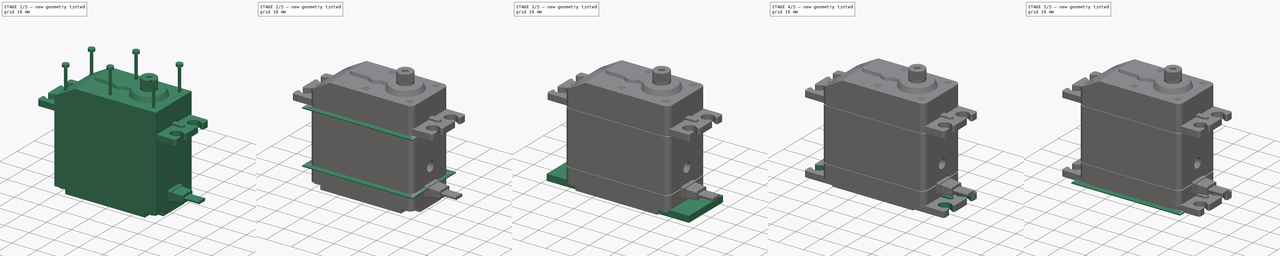
[diagram: build sequence overview — one tinted view per stage of 5, left to right]
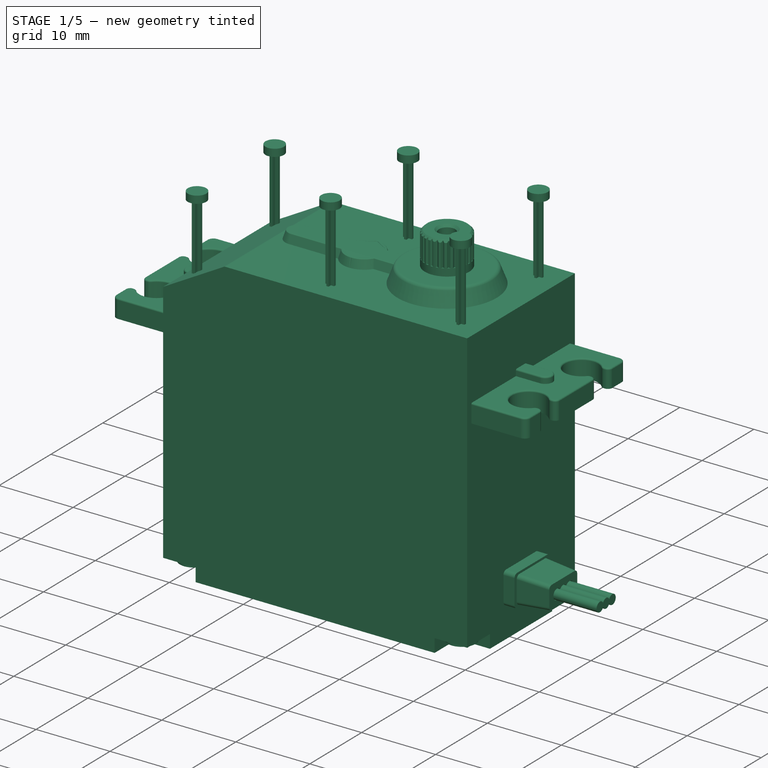
[diagram: stage 1 of 5 — iso view after this stage's code; geometry added in this stage tinted green]
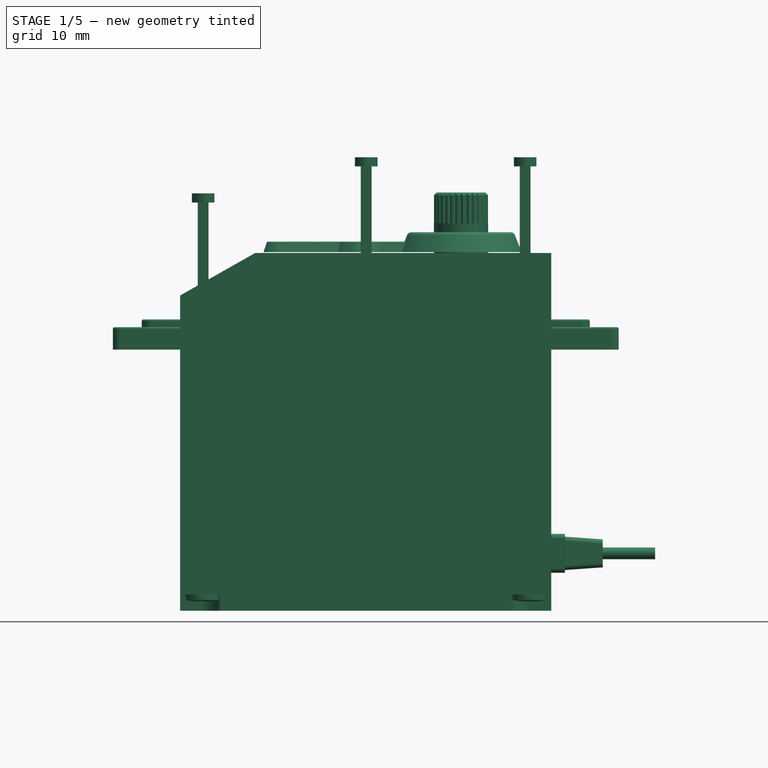
[diagram: stage 1 of 5 — front view after this stage's code; geometry added in this stage tinted green]
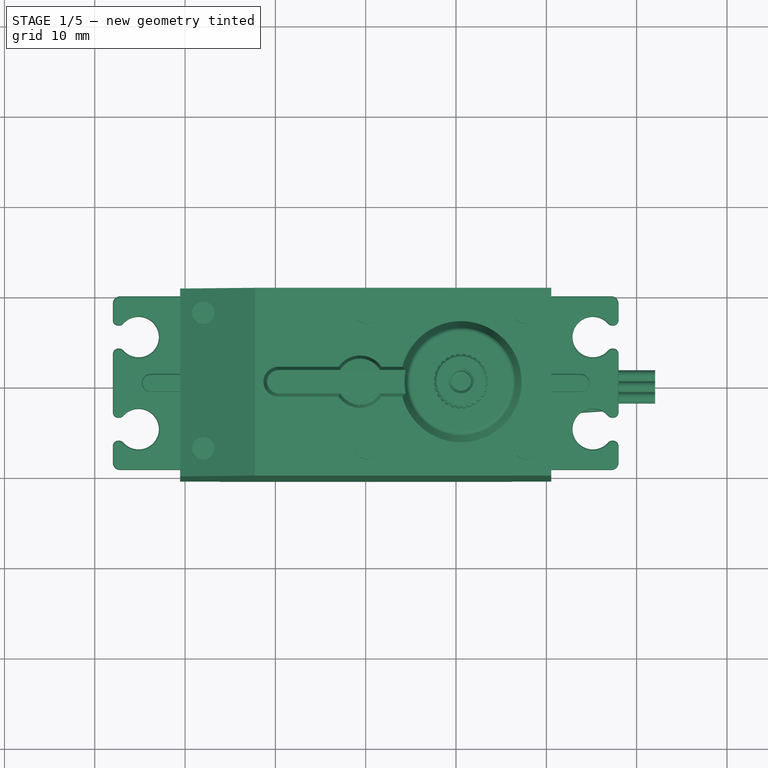
[diagram: stage 1 of 5 — top view after this stage's code; geometry added in this stage tinted green]
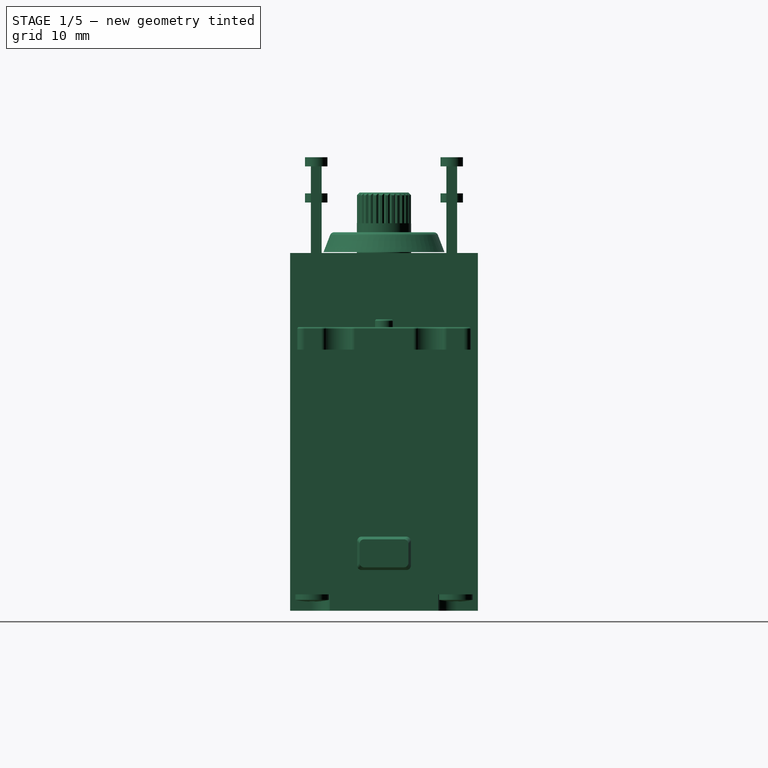
[diagram: stage 1 of 5 — right view after this stage's code; geometry added in this stage tinted green]
FCSTD DOCUMENT  (FreeCAD 0.14R3702 (Git))
Label: SM-S4303R
License: CC-BY 3.0
LicenseURL: http://creativecommons.org/licenses/by/3.0/
objects: Sketcher::SketchObject×27, Part::Feature×20, PartDesign::Pocket×12, PartDesign::Pad×9, Part::Fillet×7, Part::MultiFuse×6, App::DocumentObjectGroup×5, Part::Loft×3, PartDesign::Mirrored×2, Part::Cut×2, PartDesign::Fillet×2, PartDesign::Chamfer×2, Part::Compound×2, PartDesign::PolarPattern×1, Part::Cylinder×1
note: 117 computed .brp shape members not serialized (recipe doc carries the construction recipe); baked Part::Feature solids carry a one-line shape summary decoded from their .brp

FEATURE [Sketcher::SketchObject] Sketch  label="servo-body-sketch"
  Placement = pos=(0,0,0) rot=(1,0,0;1.5708rad)
  sketch-geometry (5):
    g0: LineSegment StartX=20.55 StartY=39.6 StartZ=0 EndX=20.55 EndY=0 EndZ=0
    g1: LineSegment StartX=20.55 StartY=0 StartZ=0 EndX=-20.55 EndY=0 EndZ=0
    g2: LineSegment StartX=-20.55 StartY=0 StartZ=0 EndX=-20.55 EndY=34.9 EndZ=0
    g3: LineSegment StartX=-20.55 StartY=34.9 StartZ=0 EndX=-12.25 EndY=39.6 EndZ=0
    g4: LineSegment StartX=-12.25 StartY=39.6 StartZ=0 EndX=20.55 EndY=39.6 EndZ=0
  constraints (15):
    c: Coincident(g0,g1)
    c: Coincident(g1,g2)
    c: Horizontal(g1)
    c: Vertical(g0)
    c: Vertical(g2)
    c: Symmetric(g1,g0,g-2)
    c: PointOnObject(g1,g-1)
    c: DistanceX(g1) = -41.1
    c: DistanceY(g0) = -39.6
    c: Coincident(g3,g2)
    c: Horizontal(g4)
    c: Coincident(g4,g0)
    c: Coincident(g3,g4)
    c: DistanceY(g2) = 34.9
    c: DistanceX(g4) = 32.8
FEATURE [PartDesign::Pad] Pad  label="servo-body-1"
  Length = 20.8
  Length2 = 100
  Midplane = true
  Placement = pos=(0,0,0) rot=(1,0,0;1.5708rad)
  Sketch = -> Sketch
  Type = 0
FEATURE [Sketcher::SketchObject] Sketch001  label="bottom-master-sketch"
  ExternalGeometry = -> [Pad]
  Placement = pos=(0,0,0) rot=(1,0,0;3.14159rad)
  Support = -> Pad [Face2]
  sketch-geometry (15):
    g0: LineSegment [constr] StartX=-20.55 StartY=10.4 StartZ=0 EndX=-18.2075 EndY=8.05754 EndZ=0
    g1: Circle [constr] CenterX=-18.2075 CenterY=8.05754 CenterZ=0 NormalX=0 NormalY=0 NormalZ=1 Radius=1.05
    g2: GeomPoint [constr] X=-18.95 Y=8.8 Z=0
    g3: LineSegment [constr] StartX=-18.2075 StartY=8.05754 StartZ=0 EndX=-18.2075 EndY=6 EndZ=0
    g4: LineSegment [constr] StartX=-18.2075 StartY=8.05754 StartZ=0 EndX=-16.15 EndY=8.05754 EndZ=0
    g5: LineSegment StartX=-20.55 StartY=6 StartZ=0 EndX=-20.55 EndY=10.4 EndZ=0
    g6: LineSegment StartX=-20.55 StartY=10.4 StartZ=0 EndX=-16.15 EndY=10.4 EndZ=0
    g7: LineSegment StartX=-16.15 StartY=10.4 StartZ=0 EndX=-16.15 EndY=8.05754 EndZ=0
    g8: ArcOfCircle CenterX=-18.2075 CenterY=8.05754 CenterZ=0 NormalX=0 NormalY=0 NormalZ=1 Radius=2.05754 StartAngle=4.71239 EndAngle=6.28319
    g9: LineSegment StartX=-20.55 StartY=6 StartZ=0 EndX=-18.2075 EndY=6 EndZ=0
    g10: ArcOfCircle CenterX=-18.2075 CenterY=-8.05754 CenterZ=0 NormalX=0 NormalY=0 NormalZ=1 Radius=2.05754 StartAngle=5.46325e-06 EndAngle=1.5708
    g11: LineSegment StartX=-18.2075 StartY=-6 StartZ=0 EndX=-20.55 EndY=-6 EndZ=0
    g12: LineSegment StartX=-20.55 StartY=-6 StartZ=0 EndX=-20.55 EndY=-10.4 EndZ=0
    g13: LineSegment StartX=-20.55 StartY=-10.4 StartZ=0 EndX=-16.15 EndY=-10.4 EndZ=0
    g14: LineSegment StartX=-16.15 StartY=-10.4 StartZ=0 EndX=-16.15 EndY=-8.05753 EndZ=0
  constraints (40):
    c: Coincident(g0,g-4)
    c: Angle(g-4,g0) = 0.785398
    c: Radius(g1) = 1.05
    c: Coincident(g1,g0)
    c: PointOnObject(g2,g0)
    c: PointOnObject(g2,g1)
    c: DistanceX(g2,g0) = -1.6
    c: Vertical(g3)
    c: Coincident(g3,g0)
    c: Coincident(g0,g4)
    c: Horizontal(g4)
    c: Equal(g3,g4)
    c: Coincident(g5,g6)
    c: Vertical(g5)
    c: Horizontal(g6)
    c: Vertical(g7)
    c: Coincident(g7,g6)
    c: Coincident(g7,g4)
    c: Coincident(g5,g0)
    c: Coincident(g8,g0)
    c: Coincident(g8,g4)
    c: Coincident(g3,g8)
    c: Coincident(g9,g5)
    c: Coincident(g9,g3)
    c: Horizontal(g9)
    c: DistanceY(g0,g5) = -4.4
    c: Horizontal(g11)
    c: Coincident(g11,g12)
    c: Vertical(g12)
    c: Coincident(g12,g13)
    c: Horizontal(g13)
    c: Coincident(g13,g14)
    c: Vertical(g14)
    c: Coincident(g12,g-4)
    c: Symmetric(g10,g0,g-1)
    c: Symmetric(g13,g6,g-1)
    c: Symmetric(g11,g3,g-1)
    c: Equal(g10,g8)
    c: Coincident(g10,g11)
    c: Coincident(g10,g14)
FEATURE [PartDesign::Pocket] Pocket  label="bottom-master"
  Length = 1.8
  Placement = pos=(0,0,0) rot=(1,0,0;1.5708rad)
  Sketch = -> Sketch001
  Type = 0
FEATURE [PartDesign::Mirrored] Mirrored  label="bottom-1"
  MirrorPlane = -> Sketch001 [V_Axis]
  Originals = -> [Pocket]
  Placement = pos=(0,0,0) rot=(1,0,0;1.5708rad)
FEATURE [Sketcher::SketchObject] Sketch002  label="bottom-2-sketch"
  ExternalGeometry = -> [Mirrored]
  Placement = pos=(0,0,1.8) rot=(1,0,0;3.14159rad)
  Support = -> Mirrored [Face23]
  sketch-geometry (10):
    g0: LineSegment [constr] StartX=-20.55 StartY=10.4 StartZ=0 EndX=-18.85 EndY=8.7 EndZ=0
    g1: Circle [constr] CenterX=-18.1075 CenterY=7.95754 CenterZ=0 NormalX=0 NormalY=0 NormalZ=1 Radius=1.05
    g2: Circle CenterX=-18.1075 CenterY=7.95754 CenterZ=0 NormalX=0 NormalY=0 NormalZ=1 Radius=1.9
    g3: Circle CenterX=-18.1075 CenterY=-7.95754 CenterZ=0 NormalX=0 NormalY=0 NormalZ=1 Radius=1.9
    g4: Circle CenterX=18.1075 CenterY=7.95754 CenterZ=0 NormalX=0 NormalY=0 NormalZ=1 Radius=1.9
    g5: Circle CenterX=18.1075 CenterY=-7.95754 CenterZ=0 NormalX=0 NormalY=0 NormalZ=1 Radius=1.9
    g6: LineSegment [constr] StartX=-18.1075 StartY=7.95754 StartZ=0 EndX=18.1075 EndY=7.95754 EndZ=0
    g7: LineSegment [constr] StartX=18.1075 StartY=7.95754 StartZ=0 EndX=18.1075 EndY=-7.95754 EndZ=0
    g8: LineSegment [constr] StartX=18.1075 StartY=-7.95754 StartZ=0 EndX=-18.1075 EndY=-7.95754 EndZ=0
    g9: LineSegment [constr] StartX=-18.1075 StartY=-7.95754 StartZ=0 EndX=-18.1075 EndY=7.95754 EndZ=0
  constraints (24):
    c: Angle(g0,g-3) = 0.785398
    c: Coincident(g0,g-3)
    c: Radius(g1) = 1.05
    c: PointOnObject(g1,g0)
    c: PointOnObject(g0,g1)
    c: DistanceX(g0,g0) = 1.7
    c: Coincident(g2,g1)
    c: Radius(g2) = 1.9
    c: Equal(g3,g2)
    c: Equal(g2,g4)
    c: Equal(g4,g5)
    c: Coincident(g6,g7)
    c: Coincident(g7,g8)
    c: Coincident(g8,g9)
    c: Coincident(g9,g6)
    c: Horizontal(g6)
    c: Horizontal(g8)
    c: Vertical(g7)
    c: Vertical(g9)
    c: Symmetric(g6,g7,g-1)
    c: Coincident(g6,g1)
    c: Coincident(g3,g8)
    c: Coincident(g6,g4)
    c: Coincident(g5,g7)
FEATURE [PartDesign::Pocket] Pocket001  label="bottom-2"
  Length = 0.6
  Placement = pos=(0,0,0) rot=(1,0,0;1.5708rad)
  Sketch = -> Sketch002
  Type = 0
FEATURE [Part::Feature] Pad002001  label="top-drills-cross-01"
  Placement = pos=(17.65,7.5,39.2) rot=(0,0,1;0rad)
  shape: bbox 2.5 x 2.5 x 11 mm, 16 faces (baked)
FEATURE [Part::Feature] Pad002001001  label="top-drills-cross-002"
  Placement = pos=(17.65,-7.5,39.2) rot=(0,0,1;0rad)
  shape: bbox 2.5 x 2.5 x 11 mm, 16 faces (baked)
FEATURE [Part::Feature] Pad002001002  label="top-drills-cross-003"
  Placement = pos=(0.05,7.5,39.2) rot=(0,0,1;0rad)
  shape: bbox 2.5 x 2.5 x 11 mm, 16 faces (baked)
FEATURE [Part::Feature] Pad002001003  label="top-drills-cross-004"
  Placement = pos=(0.05,-7.5,39.2) rot=(0,0,1;0rad)
  shape: bbox 2.5 x 2.5 x 11 mm, 16 faces (baked)
FEATURE [Part::Feature] Pad002001003001  label="top-drills-cross-005"
  Placement = pos=(-18,7.5,35.2) rot=(0,0,1;0rad)
  shape: bbox 2.5 x 2.5 x 11 mm, 16 faces (baked)
FEATURE [Part::Feature] Pad002001003002  label="top-drills-cross-006"
  Placement = pos=(-18,-7.5,35.2) rot=(0,0,1;0rad)
  shape: bbox 2.5 x 2.5 x 11 mm, 16 faces (baked)
FEATURE [Part::MultiFuse] Fusion  label="union-of-top-crosses"
  Shapes = -> [Pad002001,Pad002001003001,Pad002001003002,Pad002001002,Pad002001003,Pad002001001]
FEATURE [App::DocumentObjectGroup] Group  label="Servo-body-src"
  Group = -> [Pad,Pocket,Mirrored,Pocket001,Pocket002,Pocket003,Pocket004,Pocket005,Pocket006,Pad001,Pad002,Cut,Pad002001003003,Pad002001003004,Pad002001003004001007,Pad002001003004001007001,Fusion004,Fillet003005005,Cut001002002,Fillet003005006]
FEATURE [Part::Feature] Fillet003005006001  label="servo-body"
  shape: bbox 41.26 x 21.13 x 39.7 mm, 208 faces (baked)
FEATURE [Part::MultiFuse] Fusion005  label="servo-1"
  Shapes = -> [Fillet002,Fillet003005001,Fillet003001,Fillet003005006001]
FEATURE [Part::Feature] Cut001002003  label="bottom-screw-1"
  Placement = pos=(-18.1075,7.95754,34.2) rot=(1,0,0;3.14159rad)
  shape: bbox 3.75 x 3.75 x 33.19 mm, 18 faces (baked)
FEATURE [Part::Feature] Cut001002004  label="bottom-screw-2"
  Placement = pos=(18.1075,-7.95754,34.2) rot=(1,0,0;3.14159rad)
  shape: bbox 3.75 x 3.75 x 33.19 mm, 18 faces (baked)
FEATURE [Part::Feature] Cut001002005  label="bottom-screw-3"
  Placement = pos=(18.1075,7.95754,34.2) rot=(1,0,0;3.14159rad)
  shape: bbox 3.75 x 3.75 x 33.19 mm, 18 faces (baked)
FEATURE [Part::Feature] Cut001002006  label="bottom-screw-4"
  Placement = pos=(-18.1075,-7.95754,34.2) rot=(1,0,0;3.14159rad)
  shape: bbox 3.75 x 3.75 x 33.19 mm, 18 faces (baked)
FEATURE [Part::Compound] Compound  label="bottom-screws"
  Links = -> [Cut001002003,Cut001002006,Cut001002004,Cut001002005]
FEATURE [Part::Cylinder] Cylinder  label="wire-center"
  Angle = 360
  Height = 10
  Placement = pos=(1.5,0,0) rot=(0,1,0;1.5708rad)
  Radius = 0.65
FEATURE [Part::Feature] Cylinder001  label="wire-right"
  Placement = pos=(1.5,1.2,0) rot=(0,1,0;1.5708rad)
  shape: bbox 10 x 1.3 x 1.3 mm, 3 faces (baked)
FEATURE [Part::Feature] Cylinder002  label="wire-left"
  Placement = pos=(1.5,-1.2,0) rot=(0,1,0;1.5708rad)
  shape: bbox 10 x 1.3 x 1.3 mm, 3 faces (baked)
FEATURE [Part::MultiFuse] Fusion006  label="wires"
  Placement = pos=(20.55,0,6.35) rot=(0,0,1;0rad)
  Shapes = -> [Cylinder,Cylinder001,Cylinder002]
FEATURE [Part::Compound] Compound001  label="Servo-SM-S4303R"
  Links = -> [Chamfer001001,Fusion005,Fusion006,Compound]
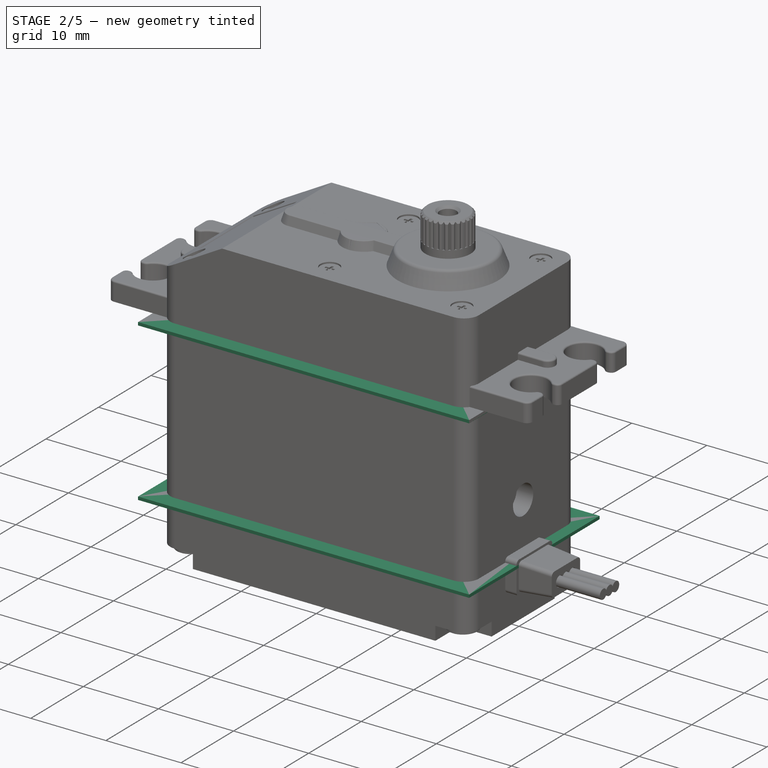
[diagram: stage 2 of 5 — iso view after this stage's code; geometry added in this stage tinted green]
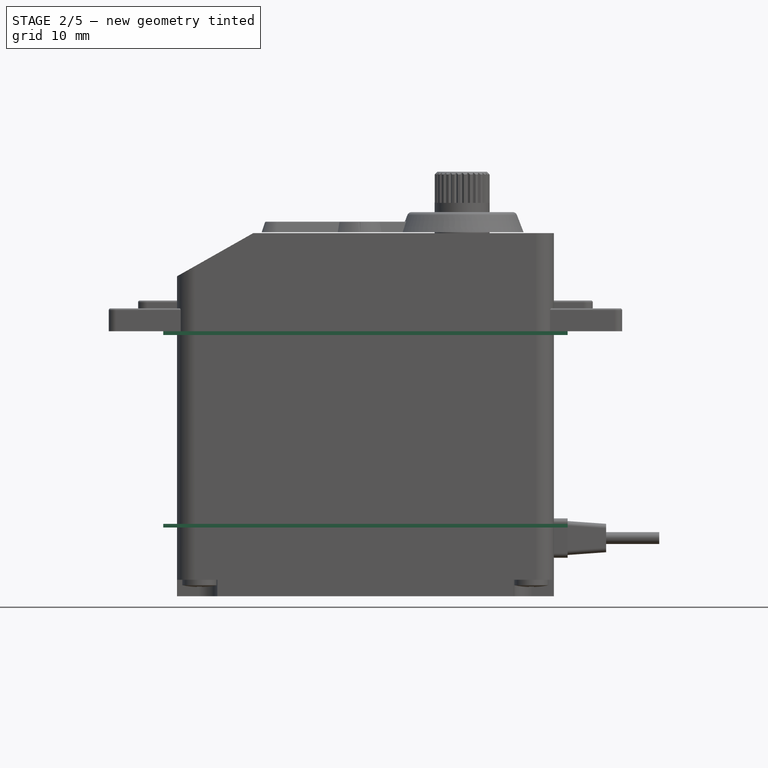
[diagram: stage 2 of 5 — front view after this stage's code; geometry added in this stage tinted green]
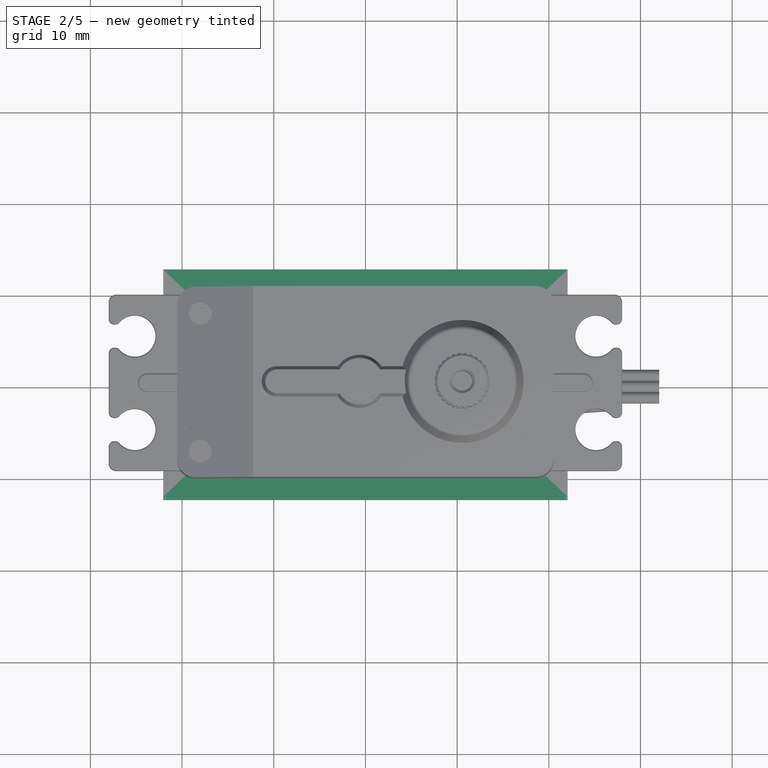
[diagram: stage 2 of 5 — top view after this stage's code; geometry added in this stage tinted green]
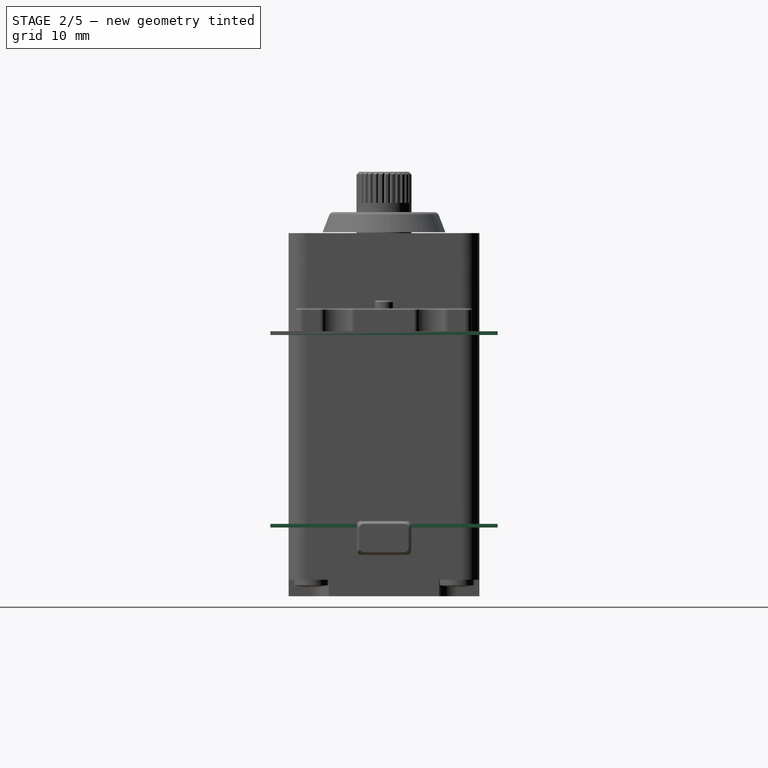
[diagram: stage 2 of 5 — right view after this stage's code; geometry added in this stage tinted green]
FEATURE [Sketcher::SketchObject] Sketch003  label="bottom-drills-sketch"
  ExternalGeometry = -> [Pocket001]
  Placement = pos=(0,0,2.4) rot=(1,0,0;3.14159rad)
  Support = -> Pocket001 [Face31]
  sketch-geometry (8):
    g0: Circle CenterX=-18.1075 CenterY=7.95754 CenterZ=0 NormalX=0 NormalY=0 NormalZ=1 Radius=1.05
    g1: LineSegment [constr] StartX=-18.1075 StartY=7.95754 StartZ=0 EndX=18.1075 EndY=7.95754 EndZ=0
    g2: LineSegment [constr] StartX=18.1075 StartY=7.95754 StartZ=0 EndX=18.1075 EndY=-7.95754 EndZ=0
    g3: LineSegment [constr] StartX=18.1075 StartY=-7.95754 StartZ=0 EndX=-18.1075 EndY=-7.95754 EndZ=0
    g4: LineSegment [constr] StartX=-18.1075 StartY=-7.95754 StartZ=0 EndX=-18.1075 EndY=7.95754 EndZ=0
    g5: Circle CenterX=-18.1075 CenterY=-7.95754 CenterZ=0 NormalX=0 NormalY=0 NormalZ=1 Radius=1.05
    g6: Circle CenterX=18.1075 CenterY=7.95754 CenterZ=0 NormalX=0 NormalY=0 NormalZ=1 Radius=1.05
    g7: Circle CenterX=18.1075 CenterY=-7.95754 CenterZ=0 NormalX=0 NormalY=0 NormalZ=1 Radius=1.05
  constraints (18):
    c: Coincident(g0,g-3)
    c: Radius(g0) = 1.05
    c: Coincident(g1,g2)
    c: Coincident(g2,g3)
    c: Coincident(g3,g4)
    c: Coincident(g4,g1)
    c: Horizontal(g1)
    c: Horizontal(g3)
    c: Vertical(g2)
    c: Vertical(g4)
    c: Symmetric(g1,g2,g-1)
    c: Coincident(g1,g0)
    c: Equal(g6,g5)
    c: Equal(g5,g7)
    c: Equal(g7,g0)
    c: Coincident(g3,g5)
    c: Coincident(g6,g1)
    c: Coincident(g7,g2)
FEATURE [PartDesign::Pocket] Pocket002  label="bottom-drills"
  Length = 32
  Placement = pos=(0,0,0) rot=(1,0,0;1.5708rad)
  Sketch = -> Sketch003
  Type = 0
FEATURE [Sketcher::SketchObject] Sketch004  label="top-drills-1-sketch"
  ExternalGeometry = -> [Pocket002]
  Placement = pos=(0,0,39.6) rot=(0,0,1;3.14159rad)
  Support = -> Pocket002 [Face9]
  sketch-geometry (9):
    g0: LineSegment [constr] StartX=-17.65 StartY=7.5 StartZ=0 EndX=-0.05 EndY=7.5 EndZ=0
    g1: LineSegment [constr] StartX=-0.05 StartY=7.5 StartZ=0 EndX=-0.05 EndY=-7.5 EndZ=0
    g2: LineSegment [constr] StartX=-0.05 StartY=-7.5 StartZ=0 EndX=-17.65 EndY=-7.5 EndZ=0
    g3: LineSegment [constr] StartX=-17.65 StartY=-7.5 StartZ=0 EndX=-17.65 EndY=7.5 EndZ=0
    g4: Circle CenterX=-0.05 CenterY=-7.5 CenterZ=0 NormalX=0 NormalY=0 NormalZ=1 Radius=1.25
    g5: Circle CenterX=-17.65 CenterY=-7.5 CenterZ=0 NormalX=0 NormalY=0 NormalZ=1 Radius=1.25
    g6: Circle CenterX=-0.05 CenterY=7.5 CenterZ=0 NormalX=0 NormalY=0 NormalZ=1 Radius=1.25
    g7: Circle CenterX=-17.65 CenterY=7.5 CenterZ=0 NormalX=0 NormalY=0 NormalZ=1 Radius=1.25
    g8: LineSegment [constr] StartX=-20.55 StartY=-10.4 StartZ=0 EndX=-17.65 EndY=-7.5 EndZ=0
  constraints (22):
    c: Coincident(g0,g1)
    c: Coincident(g1,g2)
    c: Coincident(g2,g3)
    c: Coincident(g3,g0)
    c: Horizontal(g0)
    c: Horizontal(g2)
    c: Vertical(g1)
    c: Vertical(g3)
    c: Symmetric(g2,g0,g-1)
    c: Equal(g4,g7)
    c: Equal(g7,g6)
    c: Equal(g6,g5)
    c: Radius(g4) = 1.25
    c: Coincident(g4,g1)
    c: Coincident(g6,g0)
    c: Coincident(g5,g2)
    c: Coincident(g7,g0)
    c: DistanceY(g-1,g1) = -7.5
    c: DistanceX(g2) = -17.6
    c: Coincident(g8,g-3)
    c: Coincident(g8,g2)
    c: Angle(g-3,g8) = 0.785398
FEATURE [PartDesign::Pocket] Pocket003  label="top-drills-1"
  Length = 0.2
  Placement = pos=(0,0,0) rot=(1,0,0;1.5708rad)
  Sketch = -> Sketch004
  Type = 0
FEATURE [Sketcher::SketchObject] Sketch006  label="potentiometer-1-sketch"
  Placement = pos=(20.55,0,0) rot=(0.707107,0,0.707107;3.14159rad)
  Support = -> Pocket003 [Face1]
  sketch-geometry (2):
    g0: Circle CenterX=14.175 CenterY=0 CenterZ=0 NormalX=0 NormalY=0 NormalZ=1 Radius=1.925
    g1: GeomPoint [constr] X=16.1 Y=0 Z=0
  constraints (5):
    c: PointOnObject(g0,g-1)
    c: Radius(g0) = 1.925
    c: PointOnObject(g1,g-1)
    c: PointOnObject(g1,g0)
    c: DistanceX(g-1,g1) = 16.1
FEATURE [PartDesign::Pocket] Pocket004  label="potentiometer-hole"
  Length = 2.2
  Placement = pos=(0,0,0) rot=(1,0,0;1.5708rad)
  Sketch = -> Sketch006
  Type = 0
FEATURE [Sketcher::SketchObject] Sketch007  label="potentiometer-cross-sketch"
  ExternalGeometry = -> [Pocket004]
  Placement = pos=(18.35,0,0) rot=(0.707107,0,0.707107;3.14159rad)
  Support = -> Pocket004 [Face31]
  sketch-geometry (12):
    g0: LineSegment StartX=13.675 StartY=1.65 StartZ=0 EndX=14.675 EndY=1.65 EndZ=0
    g1: LineSegment StartX=14.675 StartY=1.65 StartZ=0 EndX=14.675 EndY=0.5 EndZ=0
    g2: LineSegment StartX=14.675 StartY=-1.65 StartZ=0 EndX=13.675 EndY=-1.65 EndZ=0
    g3: LineSegment StartX=13.675 StartY=-1.65 StartZ=0 EndX=13.675 EndY=-0.5 EndZ=0
    g4: LineSegment StartX=12.525 StartY=0.5 StartZ=0 EndX=13.675 EndY=0.5 EndZ=0
    g5: LineSegment StartX=15.825 StartY=0.5 StartZ=0 EndX=15.825 EndY=-0.5 EndZ=0
    g6: LineSegment StartX=15.825 StartY=-0.5 StartZ=0 EndX=14.675 EndY=-0.5 EndZ=0
    g7: LineSegment StartX=12.525 StartY=-0.5 StartZ=0 EndX=12.525 EndY=0.5 EndZ=0
    g8: LineSegment StartX=14.675 StartY=0.5 StartZ=0 EndX=15.825 EndY=0.5 EndZ=0
    g9: LineSegment StartX=13.675 StartY=-0.5 StartZ=0 EndX=12.525 EndY=-0.5 EndZ=0
    g10: LineSegment StartX=13.675 StartY=0.5 StartZ=0 EndX=13.675 EndY=1.65 EndZ=0
    g11: LineSegment StartX=14.675 StartY=-0.5 StartZ=0 EndX=14.675 EndY=-1.65 EndZ=0
  constraints (30):
    c: Coincident(g0,g1)
    c: Coincident(g11,g2)
    c: Coincident(g2,g3)
    c: Coincident(g10,g0)
    c: Horizontal(g0)
    c: Horizontal(g2)
    c: Vertical(g1)
    c: Vertical(g3)
    c: Coincident(g8,g5)
    c: Coincident(g5,g6)
    c: Coincident(g9,g7)
    c: Coincident(g7,g4)
    c: Horizontal(g4)
    c: Horizontal(g6)
    c: Vertical(g5)
    c: Vertical(g7)
    c: Symmetric(g4,g5,g-3)
    c: Symmetric(g0,g11,g-3)
    c: Tangent(g4,g8)
    c: Tangent(g6,g9)
    c: Coincident(g3,g9)
    c: Coincident(g10,g4)
    c: Tangent(g3,g10)
    c: Coincident(g1,g8)
    c: Coincident(g11,g6)
    c: Tangent(g1,g11)
    c: Equal(g4,g10)
    c: Equal(g7,g0)
    c: DistanceX(g5,g4) = -3.3
    c: DistanceY(g5) = -1
FEATURE [PartDesign::Pocket] Pocket005  label="potentiometer-cross"
  Length = 1
  Placement = pos=(0,0,0) rot=(1,0,0;1.5708rad)
  Sketch = -> Sketch007
  Type = 0
FEATURE [Sketcher::SketchObject] Sketch008  label="label-plate-sketch"
  ExternalGeometry = -> [Pocket005]
  Placement = pos=(-19.9538,0,35.2376) rot=(-0.254782,0,0.966998;3.14159rad)
  Support = -> Pocket005 [Face15]
  sketch-geometry (8):
    g0: LineSegment StartX=-7.65321 StartY=5.15 StartZ=0 EndX=-1.15321 EndY=5.15 EndZ=0
    g1: LineSegment StartX=-0.953214 StartY=4.95 StartZ=0 EndX=-0.953214 EndY=-4.95 EndZ=0
    g2: LineSegment StartX=-1.15321 StartY=-5.15 StartZ=0 EndX=-7.65321 EndY=-5.15 EndZ=0
    g3: LineSegment StartX=-7.85321 StartY=-4.95 StartZ=0 EndX=-7.85321 EndY=4.95 EndZ=0
    g4: ArcOfCircle CenterX=-7.65321 CenterY=4.95 CenterZ=0 NormalX=0 NormalY=0 NormalZ=1 Radius=0.2 StartAngle=1.5708 EndAngle=3.14159
    g5: ArcOfCircle CenterX=-1.15321 CenterY=4.95 CenterZ=0 NormalX=0 NormalY=0 NormalZ=1 Radius=0.2 StartAngle=0 EndAngle=1.5708
    g6: ArcOfCircle CenterX=-1.15321 CenterY=-4.95 CenterZ=0 NormalX=0 NormalY=0 NormalZ=1 Radius=0.2 StartAngle=4.71239 EndAngle=6.28319
    g7: ArcOfCircle CenterX=-7.65321 CenterY=-4.95 CenterZ=0 NormalX=0 NormalY=0 NormalZ=1 Radius=0.2 StartAngle=3.14159 EndAngle=4.71239
  constraints (20):
    c: Horizontal(g0)
    c: Horizontal(g2)
    c: Vertical(g1)
    c: Vertical(g3)
    c: Tangent(g0,g4)
    c: Tangent(g3,g4)
    c: Tangent(g0,g5)
    c: Tangent(g1,g5)
    c: Tangent(g1,g6)
    c: Tangent(g2,g6)
    c: Tangent(g2,g7)
    c: Tangent(g3,g7)
    c: Equal(g4,g5)
    c: Equal(g5,g7)
    c: Equal(g7,g6)
    c: Symmetric(g5,g6,g-1)
    c: DistanceY(g0,g2) = -10.3
    c: DistanceX(g3,g1) = 6.9
    c: Radius(g4) = 0.2
    c: DistanceX(g3,g-3) = -1
FEATURE [PartDesign::Pocket] Pocket006  label="Label-plate"
  Length = 0.1
  Placement = pos=(0,0,0) rot=(1,0,0;1.5708rad)
  Sketch = -> Sketch008
  Type = 0
FEATURE [Sketcher::SketchObject] Sketch009  label="top-left-2-drills-sketch"
  Placement = pos=(0,0,39.6) rot=(0,0,1;3.14159rad)
  Support = -> Pocket006 [Face3]
  sketch-geometry (4):
    g0: Circle CenterX=18 CenterY=7.5 CenterZ=0 NormalX=0 NormalY=0 NormalZ=1 Radius=1.25
    g1: Circle CenterX=18 CenterY=-7.5 CenterZ=0 NormalX=0 NormalY=0 NormalZ=1 Radius=1.25
    g2: LineSegment [constr] StartX=18 StartY=7.5 StartZ=0 EndX=18 EndY=0 EndZ=0
    g3: LineSegment [constr] StartX=18 StartY=7.5 StartZ=0 EndX=19.25 EndY=7.5 EndZ=0
  constraints (10):
    c: Radius(g0) = 1.25
    c: Equal(g1,g0)
    c: Symmetric(g0,g1,g-1)
    c: Coincident(g2,g0)
    c: Vertical(g2)
    c: PointOnObject(g2,g-1)
    c: DistanceY(g2) = -7.5
    c: Horizontal(g3)
    c: Coincident(g3,g0)
    c: PointOnObject(g3,g0)
FEATURE [PartDesign::Pocket] Pocket007  label="top-left-2-drills"
  Length = 4.1
  Placement = pos=(0,0,0) rot=(1,0,0;1.5708rad)
  Sketch = -> Sketch009
  Type = 0
FEATURE [Part::Cut] Cut  label="servo-body-final-1"
  Base = -> Pocket007
  Tool = -> Fusion
FEATURE [Sketcher::SketchObject] Sketch012  label="shaft-anchor-sketch"
  ExternalGeometry = -> [Cut]
  Placement = pos=(0,0,39.6) rot=(0,0,1;0rad)
  Support = -> Cut [Face3]
  sketch-geometry (2):
    g0: Circle CenterX=10.55 CenterY=0 CenterZ=0 NormalX=0 NormalY=0 NormalZ=1 Radius=3
    g1: LineSegment [constr] StartX=13.55 StartY=0 StartZ=0 EndX=20.55 EndY=0 EndZ=0
  constraints (7):
    c: PointOnObject(g0,g-1)
    c: Radius(g0) = 3
    c: Horizontal(g1)
    c: PointOnObject(g1,g-3)
    c: PointOnObject(g1,g-1)
    c: PointOnObject(g1,g0)
    c: DistanceX(g1) = 7
FEATURE [PartDesign::Pad] Pad002001003003  label="servo-body-final-2"
  Length = 0.1
  Length2 = 100
  Sketch = -> Sketch012
  Type = 0
FEATURE [App::DocumentObjectGroup] Group004  label="shaft-src"
  Group = -> [Pad002001003004001006,Pocket011,Chamfer,Pocket012,PolarPattern,Chamfer001]
FEATURE [Part::Feature] Chamfer001001  label="shaft"
  Placement = pos=(10.55,0,41.9) rot=(0,0,1;0rad)
  shape: bbox 6 x 6 x 4.4 mm, 90 faces (baked)
FEATURE [Part::Feature] Pad002001003004001007  label="bottom-side-gap"
  Placement = pos=(0,0,7.5) rot=(0,0,1;0rad)
  shape: bbox 44.1 x 24.8 x 0.4 mm, 14 faces (baked)
FEATURE [Part::Feature] Pad002001003004001007001  label="top-side-gap"
  Placement = pos=(0,0,28.5) rot=(0,0,1;0rad)
  shape: bbox 44.1 x 24.8 x 0.4 mm, 14 faces (baked)
FEATURE [Part::MultiFuse] Fusion004  label="side-gaps"
  Shapes = -> [Pad002001003004001007,Pad002001003004001007001]
FEATURE [PartDesign::Fillet] Fillet003005005  label="servo-body-final-3"
  Base = -> Pad002001003003 [Edge31,Edge38,Edge25,Edge32]
  Radius = 2
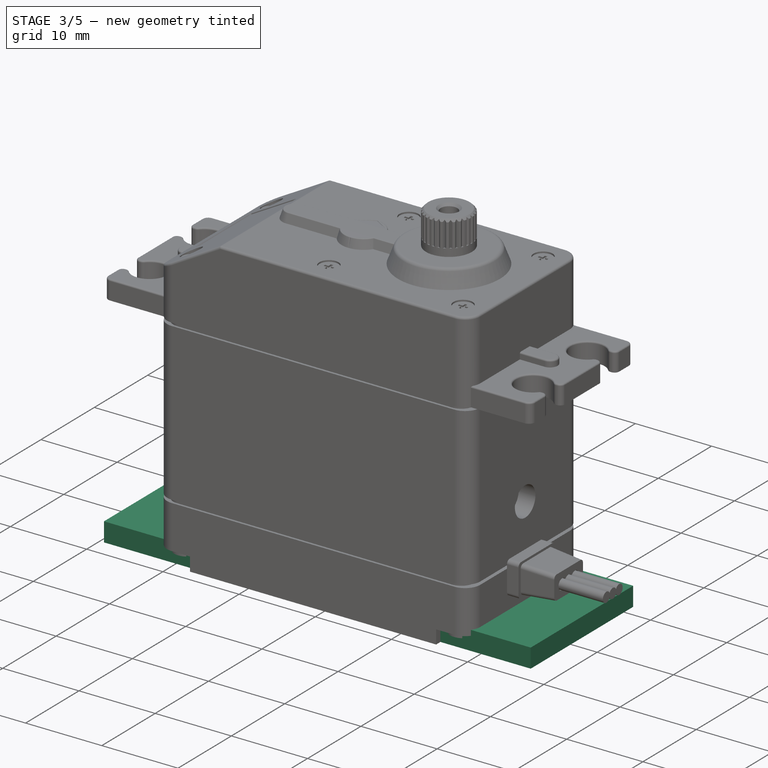
[diagram: stage 3 of 5 — iso view after this stage's code; geometry added in this stage tinted green]
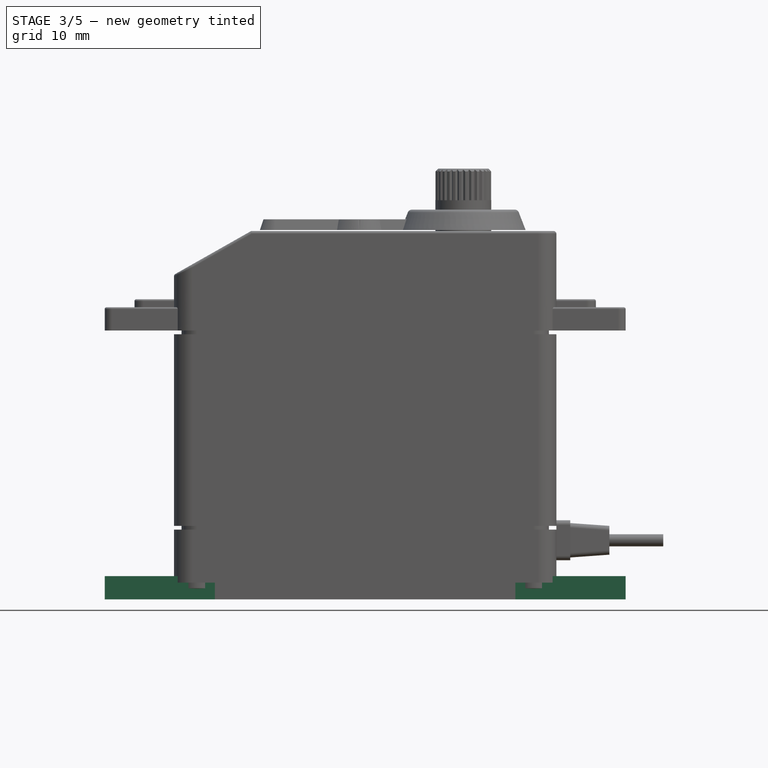
[diagram: stage 3 of 5 — front view after this stage's code; geometry added in this stage tinted green]
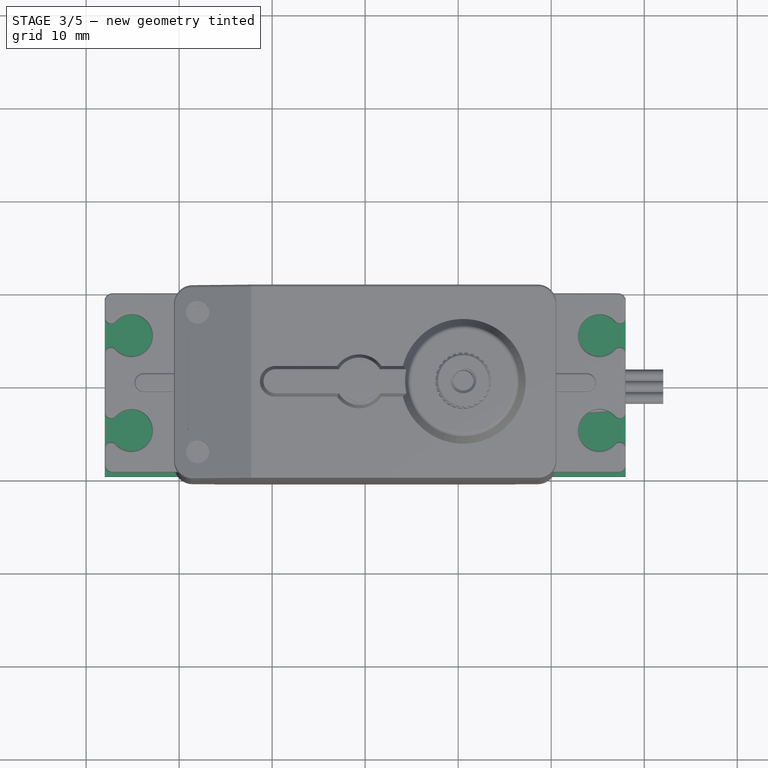
[diagram: stage 3 of 5 — top view after this stage's code; geometry added in this stage tinted green]
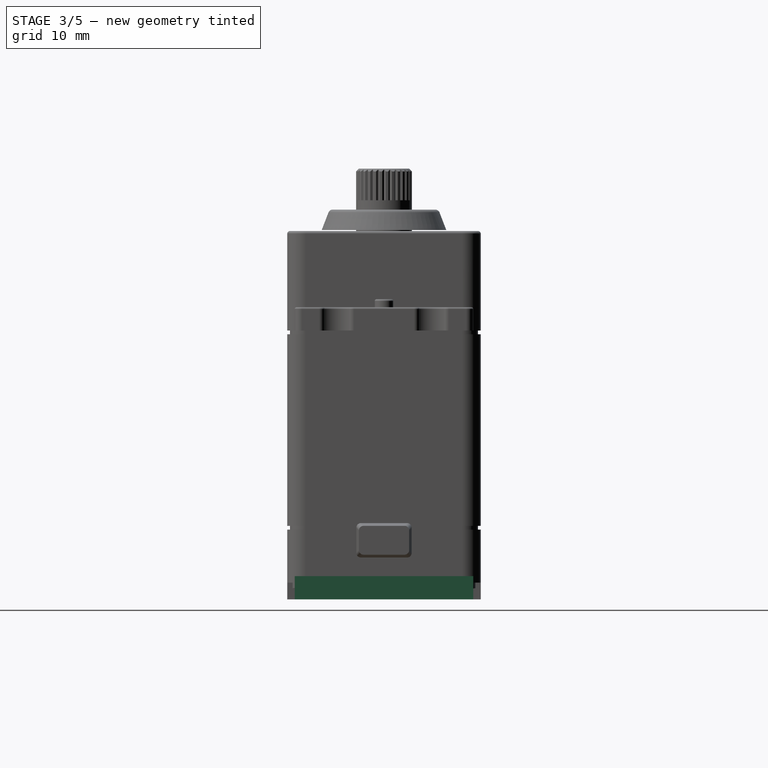
[diagram: stage 3 of 5 — right view after this stage's code; geometry added in this stage tinted green]
FEATURE [App::DocumentObjectGroup] Group001  label="top-part-src"
  Group = -> [Fusion002,Fillet001]
FEATURE [Part::Feature] Fillet002  label="top-part"
  Placement = pos=(-0.634848,0,39.7) rot=(0,0,1;0rad)
  shape: bbox 28.82 x 13.4 x 14.16 mm, 24 faces (baked)
FEATURE [Sketcher::SketchObject] Sketch019  label="ears-body-1-sketch"
  sketch-geometry (4):
    g0: LineSegment StartX=-28 StartY=9.6 StartZ=0 EndX=28 EndY=9.6 EndZ=0
    g1: LineSegment StartX=28 StartY=9.6 StartZ=0 EndX=28 EndY=-9.6 EndZ=0
    g2: LineSegment StartX=28 StartY=-9.6 StartZ=0 EndX=-28 EndY=-9.6 EndZ=0
    g3: LineSegment StartX=-28 StartY=-9.6 StartZ=0 EndX=-28 EndY=9.6 EndZ=0
  constraints (11):
    c: Coincident(g0,g1)
    c: Coincident(g1,g2)
    c: Coincident(g2,g3)
    c: Coincident(g3,g0)
    c: Horizontal(g0)
    c: Horizontal(g2)
    c: Vertical(g1)
    c: Vertical(g3)
    c: Symmetric(g0,g1,g-1)
    c: DistanceX(g0) = 56
    c: DistanceY(g3) = 19.2
FEATURE [PartDesign::Pad] Pad002001003004001002  label="ears-body-1"
  Length = 2.5
  Length2 = 100
  Sketch = -> Sketch019
  Type = 0
FEATURE [App::DocumentObjectGroup] Group002  label="ears-src"
  Group = -> [Pad002001003004001002,Pocket008,Mirrored001,Pad002001003004001003,Fillet003004,Fillet003005]
FEATURE [Part::Feature] Fillet003005001  label="ears"
  Placement = pos=(0,0,28.9) rot=(0,0,1;0rad)
  shape: bbox 56.13 x 19.33 x 3.36 mm, 91 faces (baked)
FEATURE [Sketcher::SketchObject] Sketch026  label="shaft-body-sketch"
  sketch-geometry (1):
    g0: Circle CenterX=0 CenterY=0 CenterZ=0 NormalX=0 NormalY=0 NormalZ=1 Radius=3
  constraints (2):
    c: Coincident(g0,g-1)
    c: Radius(g0) = 3
FEATURE [PartDesign::Pad] Pad002001003004001006  label="shaft-body"
  Length = 4.4
  Length2 = 100
  Sketch = -> Sketch026
  Type = 0
FEATURE [Sketcher::SketchObject] Sketch027  label="shaft-body-2-sketch"
  Placement = pos=(0,0,4.4) rot=(0,0,1;0rad)
  Support = -> Pad002001003004001006 [Face3]
  sketch-geometry (1):
    g0: Circle CenterX=0 CenterY=0 CenterZ=0 NormalX=0 NormalY=0 NormalZ=1 Radius=1.1
  constraints (2):
    c: Coincident(g0,g-1)
    c: Radius(g0) = 1.1
FEATURE [PartDesign::Pocket] Pocket011  label="shaft-body-2"
  Length = 5
  Sketch = -> Sketch027
  Type = 1
FEATURE [PartDesign::Chamfer] Chamfer  label="shaft-body-3"
  Base = -> Pocket011 [Edge3]
  Size = 0.3
FEATURE [Sketcher::SketchObject] Sketch028  label="shaft-tooth-sketch"
  Placement = pos=(0,0,4.4) rot=(0,0,1;0rad)
  Support = -> Chamfer [Face4]
  sketch-geometry (3):
    g0: LineSegment StartX=-0.2 StartY=3 StartZ=0 EndX=0 EndY=2.8 EndZ=0
    g1: LineSegment StartX=0.2 StartY=3 StartZ=0 EndX=0 EndY=2.8 EndZ=0
    g2: LineSegment StartX=-0.2 StartY=3 StartZ=0 EndX=0.2 EndY=3 EndZ=0
  constraints (8):
    c: Horizontal(g2)
    c: Coincident(g2,g0)
    c: Coincident(g2,g1)
    c: Symmetric(g0,g1,g-2)
    c: DistanceX(g2) = 0.4
    c: Coincident(g0,g1)
    c: PointOnObject(g0,g-2)
    c: DistanceY(g0,g1) = 0.2
FEATURE [PartDesign::Pocket] Pocket012  label="shaft-tooth"
  Length = 3.4
  Sketch = -> Sketch028
  Type = 0
FEATURE [PartDesign::PolarPattern] PolarPattern  label="shaft-teeth"
  Angle = 360
  Axis = -> Sketch028 [N_Axis]
  Occurrences = 28
  Originals = -> [Pocket012]
FEATURE [PartDesign::Chamfer] Chamfer001  label="shaft-final"
  Base = -> PolarPattern [Edge286]
  Size = 0.3
FEATURE [Part::Cut] Cut001002002  label="servo-body-final-4"
  Base = -> Fillet003005005
  Tool = -> Fusion004
FEATURE [Part::Fillet] Fillet003005006  label="servo-body-final-5"
  Base = -> Cut001002002
  Edges = 3 edges r=0.3: [Edge1,Edge3,Edge14]
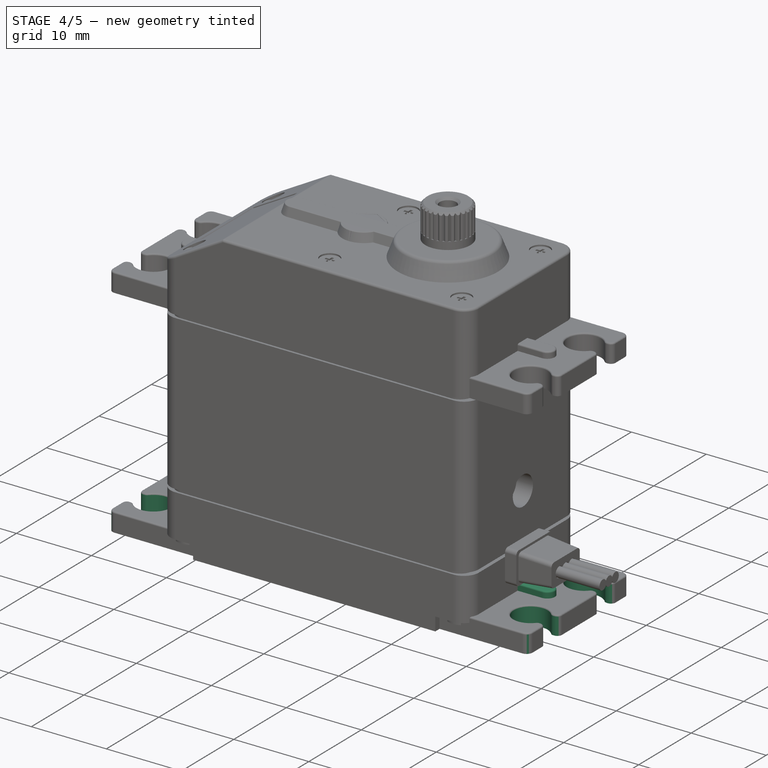
[diagram: stage 4 of 5 — iso view after this stage's code; geometry added in this stage tinted green]
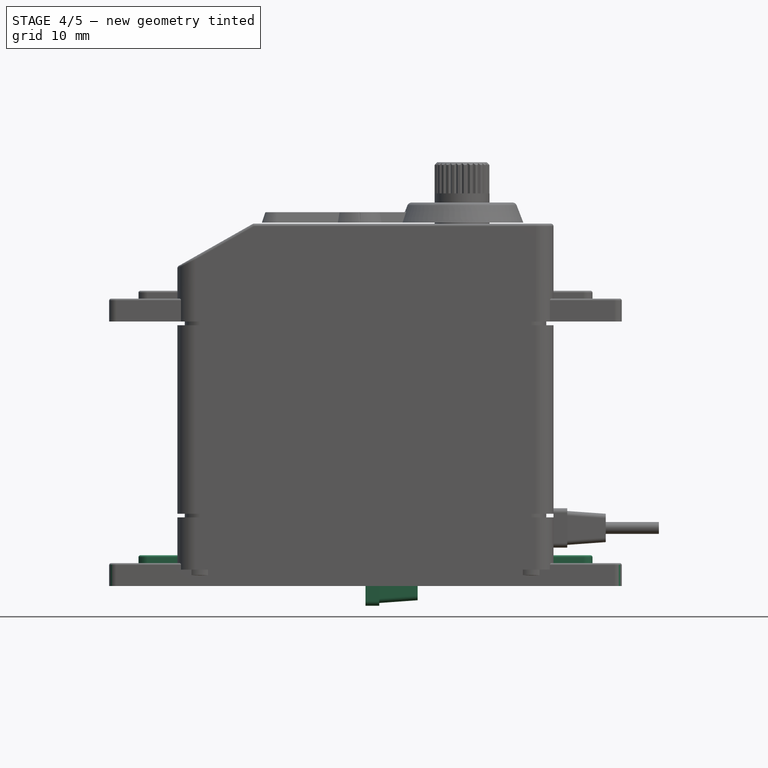
[diagram: stage 4 of 5 — front view after this stage's code; geometry added in this stage tinted green]
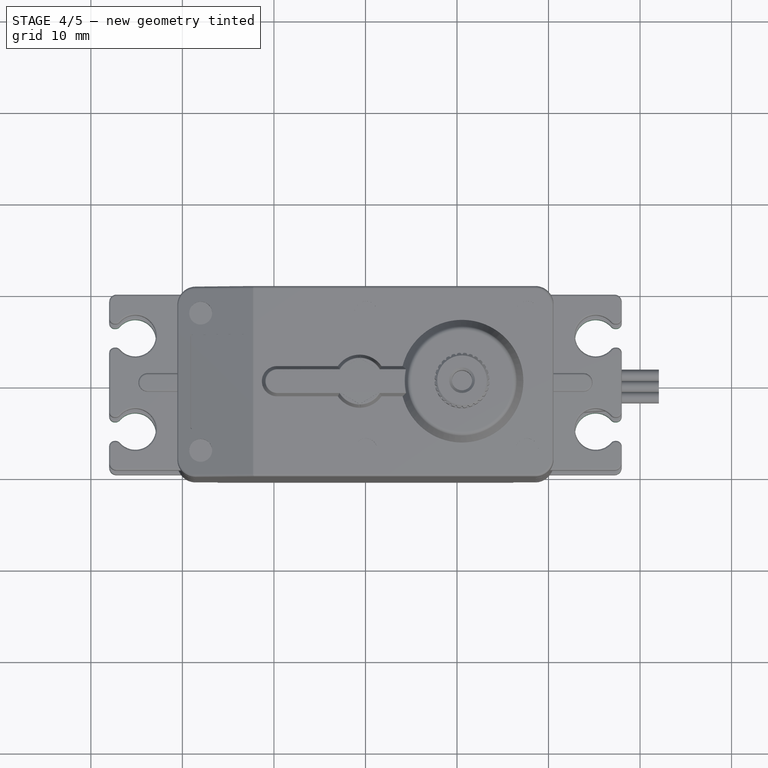
[diagram: stage 4 of 5 — top view after this stage's code; geometry added in this stage tinted green]
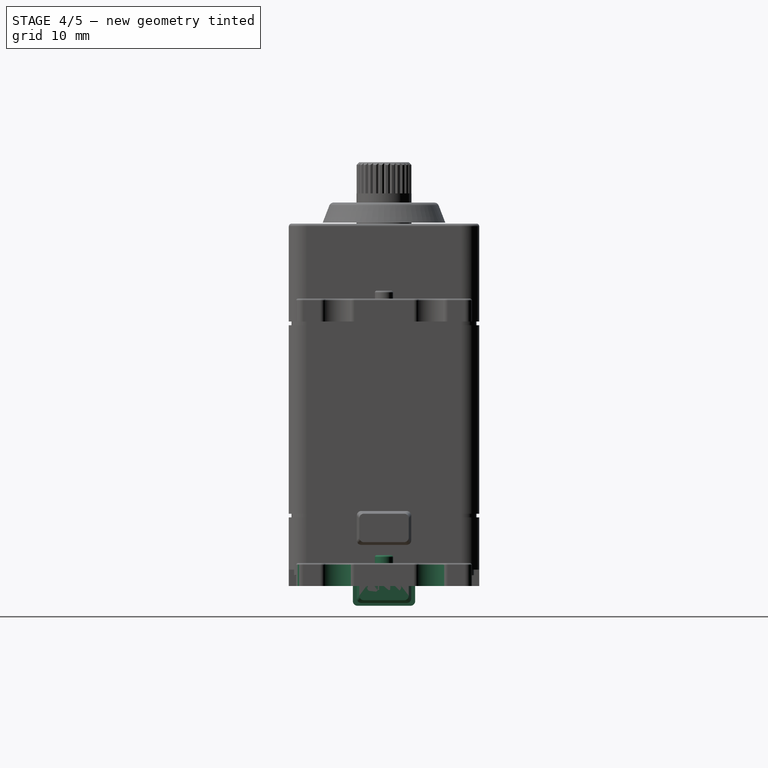
[diagram: stage 4 of 5 — right view after this stage's code; geometry added in this stage tinted green]
FEATURE [Sketcher::SketchObject] Sketch020  label="right-ears-sketch"
  Placement = pos=(0,0,2.5) rot=(0,0,1;0rad)
  Support = -> Pad002001003004001002 [Face6]
  sketch-geometry (9):
    g0: ArcOfCircle CenterX=25.15 CenterY=5.1 CenterZ=0 NormalX=0 NormalY=0 NormalZ=1 Radius=2.25 StartAngle=0.605154 EndAngle=5.67803
    g1: LineSegment [constr] StartX=22.9 StartY=5.1 StartZ=0 EndX=25.15 EndY=5.1 EndZ=0
    g2: LineSegment StartX=27.0004 StartY=6.38 StartZ=0 EndX=29.0004 EndY=6.38 EndZ=0
    g3: LineSegment StartX=29.0004 StartY=6.38 StartZ=0 EndX=29.0004 EndY=3.82 EndZ=0
    g4: LineSegment StartX=29.0004 StartY=3.82 StartZ=0 EndX=27.0004 EndY=3.82 EndZ=0
    g5: ArcOfCircle CenterX=25.15 CenterY=-5.1 CenterZ=0 NormalX=0 NormalY=0 NormalZ=1 Radius=2.25 StartAngle=0.605154 EndAngle=5.67803
    g6: LineSegment StartX=27.0004 StartY=-3.82 StartZ=0 EndX=29.0004 EndY=-3.82 EndZ=0
    g7: LineSegment StartX=29.0004 StartY=-3.82 StartZ=0 EndX=29.0004 EndY=-6.38 EndZ=0
    g8: LineSegment StartX=29.0004 StartY=-6.38 StartZ=0 EndX=27.0004 EndY=-6.38 EndZ=0
  constraints (28):
    c: Radius(g0) = 2.25
    c: DistanceX(g0) = 25.15
    c: DistanceY(g0) = 5.1
    c: Horizontal(g1)
    c: PointOnObject(g1,g0)
    c: Coincident(g1,g0)
    c: Coincident(g2,g3)
    c: Coincident(g3,g4)
    c: Horizontal(g2)
    c: Horizontal(g4)
    c: Vertical(g3)
    c: Coincident(g0,g2)
    c: Coincident(g0,g4)
    c: Symmetric(g0,g0,g1)
    c: DistanceY(g3) = -2.56
    c: DistanceX(g2) = 2
    c: Symmetric(g5,g0,g-1)
    c: Equal(g0,g5)
    c: Coincident(g6,g7)
    c: Coincident(g7,g8)
    c: Horizontal(g6)
    c: Horizontal(g8)
    c: Vertical(g7)
    c: Coincident(g6,g5)
    c: Coincident(g8,g5)
    c: Symmetric(g5,g0,g-1)
    c: Symmetric(g0,g5,g-1)
    c: Symmetric(g6,g3,g-1)
FEATURE [PartDesign::Pocket] Pocket008  label="right-ear"
  Length = 5
  Sketch = -> Sketch020
  Type = 1
FEATURE [PartDesign::Mirrored] Mirrored001  label="ears-block-1"
  MirrorPlane = -> Sketch020 [V_Axis]
  Originals = -> [Pocket008]
FEATURE [Sketcher::SketchObject] Sketch021  label="ears-block-2-sketch"
  Placement = pos=(0,0,2.5) rot=(0,0,1;0rad)
  Support = -> Mirrored001 [Face5]
  sketch-geometry (6):
    g0: ArcOfCircle CenterX=-23.8 CenterY=0 CenterZ=0 NormalX=0 NormalY=0 NormalZ=1 Radius=1 StartAngle=1.57079 EndAngle=4.7124
    g1: ArcOfCircle CenterX=23.8 CenterY=0 CenterZ=0 NormalX=0 NormalY=0 NormalZ=1 Radius=1 StartAngle=4.71238 EndAngle=7.85399
    g2: LineSegment StartX=-23.8 StartY=-1 StartZ=0 EndX=23.8 EndY=-1 EndZ=0
    g3: LineSegment StartX=-23.8 StartY=1 StartZ=0 EndX=23.8 EndY=1 EndZ=0
    g4: GeomPoint [constr] X=-24.8 Y=0 Z=0
    g5: GeomPoint [constr] X=24.8 Y=0 Z=0
  constraints (18):
    c: Tangent(g0,g2)
    c: Tangent(g0,g3)
    c: Tangent(g1,g2)
    c: Tangent(g1,g3)
    c: Coincident(g0,g3)
    c: Coincident(g0,g2)
    c: Coincident(g2,g1)
    c: Coincident(g3,g1)
    c: Horizontal(g2)
    c: Equal(g0,g1)
    c: Symmetric(g0,g1,g-2)
    c: PointOnObject(g0,g-1)
    c: DistanceY(g0,g0) = 2
    c: PointOnObject(g4,g-1)
    c: PointOnObject(g4,g0)
    c: PointOnObject(g5,g-1)
    c: PointOnObject(g5,g1)
    c: DistanceX(g4,g5) = 49.6
FEATURE [PartDesign::Pad] Pad002001003004001003  label="ears-block-2"
  Length = 0.86
  Length2 = 100
  Sketch = -> Sketch021
  Type = 0
FEATURE [Sketcher::SketchObject] Sketch022  label="wire-holder-base-sketch"
  Placement = pos=(0,0,0) rot=(0.57735,0.57735,0.57735;2.0944rad)
  sketch-geometry (4):
    g0: LineSegment StartX=-3.4 StartY=2.15 StartZ=0 EndX=3.4 EndY=2.15 EndZ=0
    g1: LineSegment StartX=3.4 StartY=2.15 StartZ=0 EndX=3.4 EndY=-2.15 EndZ=0
    g2: LineSegment StartX=3.4 StartY=-2.15 StartZ=0 EndX=-3.4 EndY=-2.15 EndZ=0
    g3: LineSegment StartX=-3.4 StartY=-2.15 StartZ=0 EndX=-3.4 EndY=2.15 EndZ=0
  constraints (11):
    c: Coincident(g0,g1)
    c: Coincident(g1,g2)
    c: Coincident(g2,g3)
    c: Coincident(g3,g0)
    c: Horizontal(g0)
    c: Horizontal(g2)
    c: Vertical(g1)
    c: Vertical(g3)
    c: Symmetric(g0,g1,g-1)
    c: DistanceY(g1) = -4.3
    c: DistanceX(g0) = 6.8
FEATURE [PartDesign::Pad] Pad002001003004001005  label="wire-holder-base"
  Length = 1.5
  Length2 = 100
  Placement = pos=(0,0,0) rot=(0.57735,0.57735,0.57735;2.0944rad)
  Sketch = -> Sketch022
  Type = 0
FEATURE [Part::Feature] Pocket010  label="wire-holder-body-2-copy"
  Placement = pos=(1.5,0,0) rot=(0,0,1;0rad)
  shape: bbox 4.2 x 5.95 x 3.7 mm, 14 faces (baked)
FEATURE [Part::MultiFuse] Fusion003  label="wire-holder-body-3"
  Shapes = -> [Pad002001003004001005,Pocket010]
FEATURE [Part::Fillet] Fillet003  label="wire-holder-body-4"
  Base = -> Fusion003
  Edges = 8 edges r=0.5: [Edge1,Edge2,Edge5,Edge8,Edge17,Edge18,Edge20,Edge22]
FEATURE [App::DocumentObjectGroup] Group003  label="wire-holder-src"
  Group = -> [Pad002001003004001005,Loft002,Pocket009,Pocket010,Fusion003,Fillet003]
FEATURE [Part::Feature] Fillet003001  label="wire-holder"
  Placement = pos=(20.55,0,6.35) rot=(0,0,1;0rad)
  shape: bbox 5.992 x 6.8 x 4.3 mm, 28 faces (baked)
FEATURE [Part::Fillet] Fillet003002
  Base = -> Pad002001003004001003
  Edges = 4 edges r=0.8: [Edge33,Edge34,Edge69,Edge71]
FEATURE [Part::Fillet] Fillet003003
  Base = -> Fillet003002
  Edges = 16 edges r=0.6: [Edge37,Edge39,Edge41,Edge43,Edge44,Edge46,Edge49,Edge51,Edge53,Edge55,Edge57,Edge59,Edge60,Edge62,Edge65,Edge67]
FEATURE [Part::Fillet] Fillet003004  label="ears-block-3"
  Base = -> Fillet003003
  Edges = 1 edges r=0.2: [Edge36]
FEATURE [Part::Fillet] Fillet003005  label="ears-block-4"
  Base = -> Fillet003004
  Edges = 1 edges r=0.2: [Edge132]
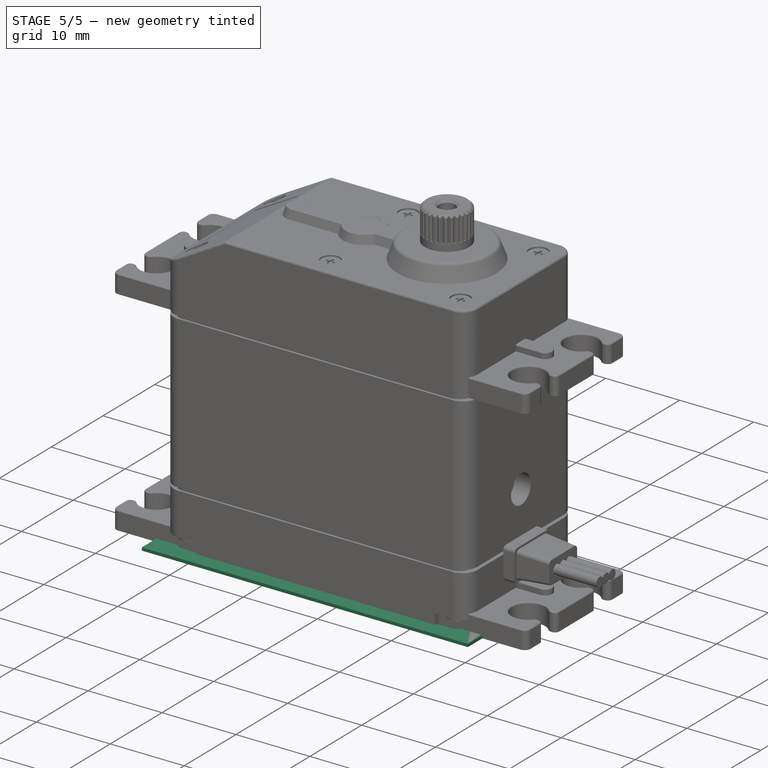
[diagram: stage 5 of 5 — iso view after this stage's code; geometry added in this stage tinted green]
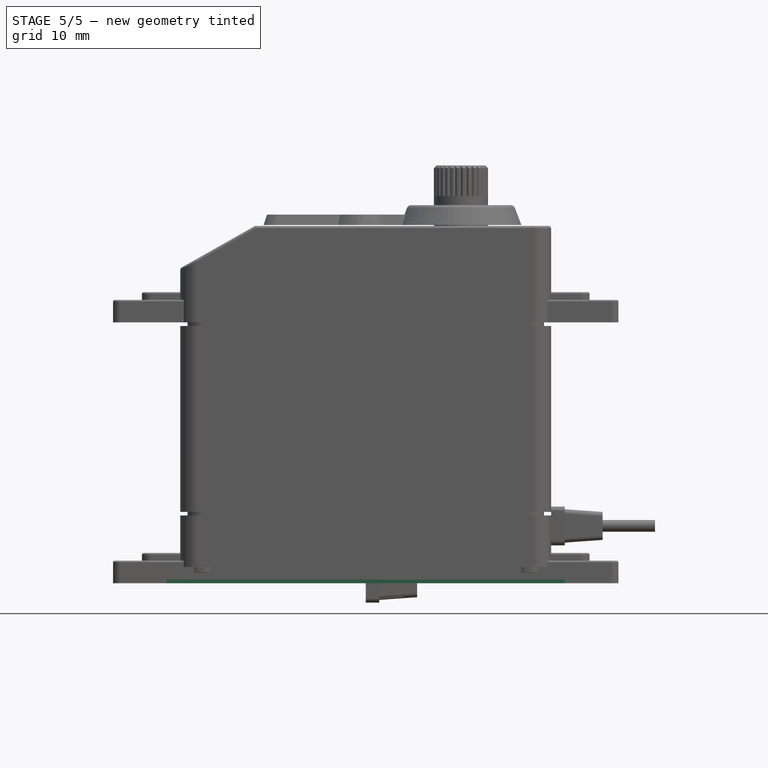
[diagram: stage 5 of 5 — front view after this stage's code; geometry added in this stage tinted green]
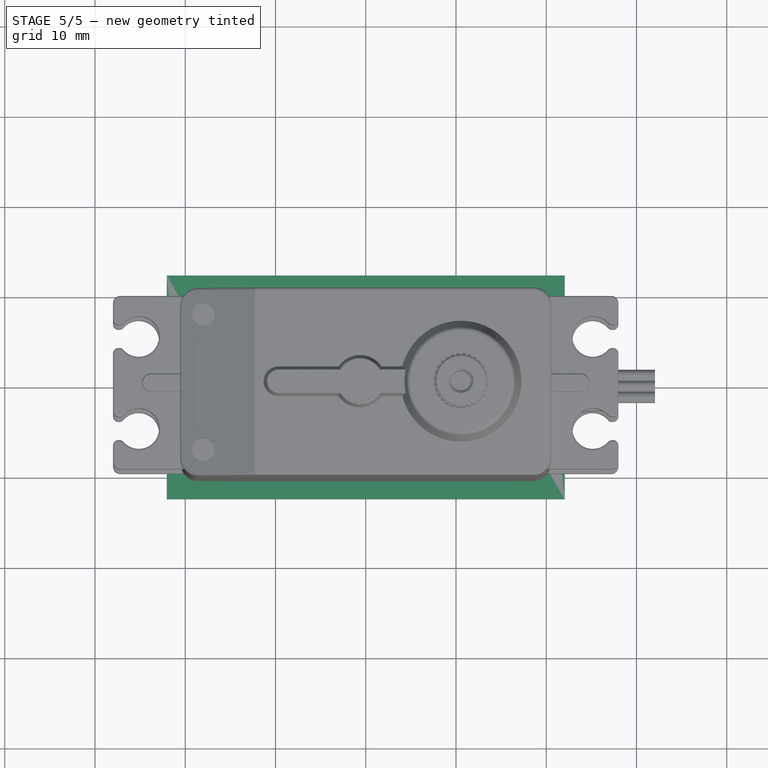
[diagram: stage 5 of 5 — top view after this stage's code; geometry added in this stage tinted green]
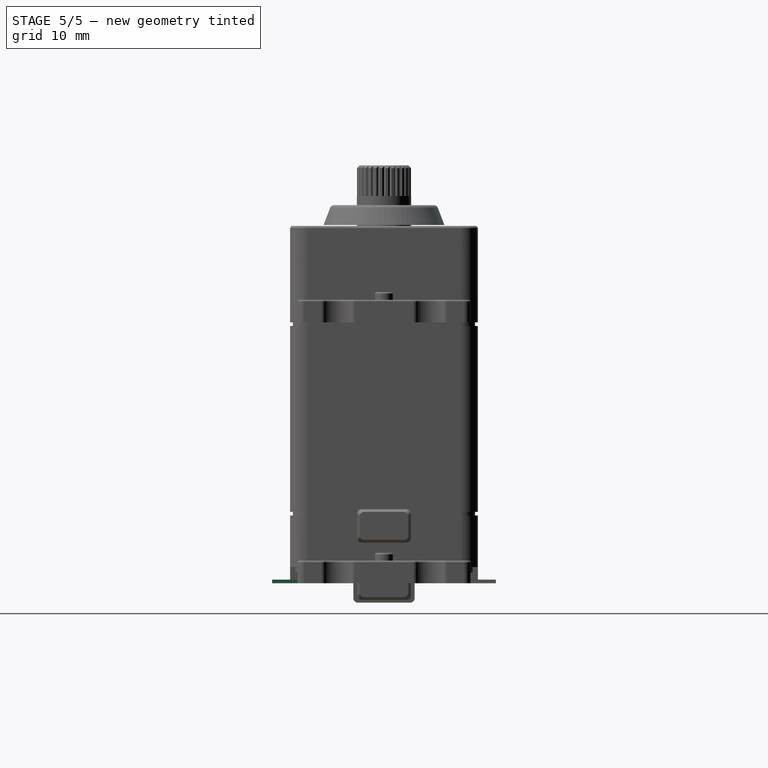
[diagram: stage 5 of 5 — right view after this stage's code; geometry added in this stage tinted green]
FEATURE [Sketcher::SketchObject] Sketch010  label="top-drills-cross-1-sketch"
  sketch-geometry (13):
    g0: Circle [constr] CenterX=0 CenterY=0 CenterZ=0 NormalX=0 NormalY=0 NormalZ=1 Radius=1.25
    g1: LineSegment StartX=-0.15 StartY=0.6 StartZ=0 EndX=0.15 EndY=0.6 EndZ=0
    g2: LineSegment StartX=0.15 StartY=0.6 StartZ=0 EndX=0.15 EndY=0.15 EndZ=0
    g3: LineSegment StartX=0.15 StartY=-0.6 StartZ=0 EndX=-0.15 EndY=-0.6 EndZ=0
    g4: LineSegment StartX=-0.15 StartY=-0.6 StartZ=0 EndX=-0.15 EndY=-0.15 EndZ=0
    g5: LineSegment StartX=-0.6 StartY=0.15 StartZ=0 EndX=-0.15 EndY=0.15 EndZ=0
    g6: LineSegment StartX=0.6 StartY=0.15 StartZ=0 EndX=0.6 EndY=-0.15 EndZ=0
    g7: LineSegment StartX=0.6 StartY=-0.15 StartZ=0 EndX=0.15 EndY=-0.15 EndZ=0
    g8: LineSegment StartX=-0.6 StartY=-0.15 StartZ=0 EndX=-0.6 EndY=0.15 EndZ=0
    g9: LineSegment StartX=0.15 StartY=0.15 StartZ=0 EndX=0.6 EndY=0.15 EndZ=0
    g10: LineSegment StartX=-0.15 StartY=-0.15 StartZ=0 EndX=-0.6 EndY=-0.15 EndZ=0
    g11: LineSegment StartX=-0.15 StartY=0.15 StartZ=0 EndX=-0.15 EndY=0.6 EndZ=0
    g12: LineSegment StartX=0.15 StartY=-0.15 StartZ=0 EndX=0.15 EndY=-0.6 EndZ=0
  constraints (32):
    c: Coincident(g0,g-1)
    c: Radius(g0) = 1.25
    c: Coincident(g1,g2)
    c: Coincident(g12,g3)
    c: Coincident(g3,g4)
    c: Coincident(g11,g1)
    c: Horizontal(g1)
    c: Horizontal(g3)
    c: Vertical(g2)
    c: Vertical(g4)
    c: Symmetric(g1,g12,g-1)
    c: Coincident(g9,g6)
    c: Coincident(g6,g7)
    c: Coincident(g10,g8)
    c: Coincident(g8,g5)
    c: Horizontal(g5)
    c: Horizontal(g7)
    c: Vertical(g6)
    c: Vertical(g8)
    c: Symmetric(g5,g6,g-1)
    c: Tangent(g5,g9)
    c: Tangent(g7,g10)
    c: Coincident(g4,g10)
    c: Coincident(g11,g5)
    c: Tangent(g4,g11)
    c: Coincident(g2,g9)
    c: Coincident(g12,g7)
    c: Tangent(g2,g12)
    c: Equal(g5,g11)
    c: Equal(g8,g1)
    c: DistanceX(g5,g6) = 1.2
    c: DistanceX(g1) = 0.3
FEATURE [PartDesign::Pad] Pad001  label="top-drills-cross-1"
  Length = 10
  Length2 = 100
  Sketch = -> Sketch010
  Type = 0
FEATURE [Sketcher::SketchObject] Sketch011  label="top-drills-cross-2-sketch"
  Placement = pos=(0,0,10) rot=(0,0,1;0rad)
  Support = -> Pad001 [Face14]
  sketch-geometry (1):
    g0: Circle CenterX=0 CenterY=0 CenterZ=0 NormalX=0 NormalY=0 NormalZ=1 Radius=1.25
  constraints (2):
    c: Coincident(g0,g-1)
    c: Radius(g0) = 1.25
FEATURE [PartDesign::Pad] Pad002  label="top-drills-cross-2"
  Length = 1
  Length2 = 100
  Sketch = -> Sketch011
  Type = 0
FEATURE [Sketcher::SketchObject] Sketch013  label="side-gap-sketch"
  sketch-geometry (25):
    g0: LineSegment [constr] StartX=-18.05 StartY=10.4 StartZ=0 EndX=18.05 EndY=10.4 EndZ=0
    g1: LineSegment [constr] StartX=20.05 StartY=8.4 StartZ=0 EndX=20.05 EndY=-8.4 EndZ=0
    g2: LineSegment [constr] StartX=18.05 StartY=-10.4 StartZ=0 EndX=-18.05 EndY=-10.4 EndZ=0
    g3: LineSegment [constr] StartX=-20.05 StartY=-8.4 StartZ=0 EndX=-20.05 EndY=8.4 EndZ=0
    g4: LineSegment [constr] StartX=-22.05 StartY=12.4 StartZ=0 EndX=-18.05 EndY=8.4 EndZ=0
    g5: LineSegment StartX=-18.05 StartY=10.1 StartZ=0 EndX=18.05 EndY=10.1 EndZ=0
    g6: LineSegment StartX=19.75 StartY=8.4 StartZ=0 EndX=19.75 EndY=-8.4 EndZ=0
    g7: LineSegment StartX=18.05 StartY=-10.1 StartZ=0 EndX=-18.05 EndY=-10.1 EndZ=0
    g8: LineSegment StartX=-19.75 StartY=-8.4 StartZ=0 EndX=-19.75 EndY=8.4 EndZ=0
    g9: LineSegment StartX=-22.05 StartY=12.4 StartZ=0 EndX=22.05 EndY=12.4 EndZ=0
    g10: LineSegment StartX=22.05 StartY=12.4 StartZ=0 EndX=22.05 EndY=-12.4 EndZ=0
    g11: LineSegment StartX=22.05 StartY=-12.4 StartZ=0 EndX=-22.05 EndY=-12.4 EndZ=0
    g12: LineSegment StartX=-22.05 StartY=-12.4 StartZ=0 EndX=-22.05 EndY=12.4 EndZ=0
    g13: ArcOfCircle [constr] CenterX=18.05 CenterY=-8.4 CenterZ=0 NormalX=0 NormalY=0 NormalZ=1 Radius=2 StartAngle=4.71239 EndAngle=6.28319
    g14: ArcOfCircle [constr] CenterX=18.05 CenterY=8.4 CenterZ=0 NormalX=0 NormalY=0 NormalZ=1 Radius=2 StartAngle=0 EndAngle=1.5708
    g15: ArcOfCircle [constr] CenterX=-18.05 CenterY=8.4 CenterZ=0 NormalX=0 NormalY=0 NormalZ=1 Radius=2 StartAngle=1.5708 EndAngle=3.14159
    g16: ArcOfCircle [constr] CenterX=-18.05 CenterY=-8.4 CenterZ=0 NormalX=0 NormalY=0 NormalZ=1 Radius=2 StartAngle=3.14159 EndAngle=4.71239
    g17: LineSegment [constr] StartX=-18.05 StartY=8.4 StartZ=0 EndX=18.05 EndY=8.4 EndZ=0
    g18: LineSegment [constr] StartX=18.05 StartY=8.4 StartZ=0 EndX=18.05 EndY=-8.4 EndZ=0
    g19: LineSegment [constr] StartX=18.05 StartY=-8.4 StartZ=0 EndX=-18.05 EndY=-8.4 EndZ=0
    g20: LineSegment [constr] StartX=-18.05 StartY=-8.4 StartZ=0 EndX=-18.05 EndY=8.4 EndZ=0
    g21: ArcOfCircle CenterX=-18.05 CenterY=8.4 CenterZ=0 NormalX=0 NormalY=0 NormalZ=1 Radius=1.7 StartAngle=1.5708 EndAngle=3.14159
    g22: ArcOfCircle CenterX=-18.05 CenterY=-8.4 CenterZ=0 NormalX=0 NormalY=0 NormalZ=1 Radius=1.7 StartAngle=3.14159 EndAngle=4.71239
    g23: ArcOfCircle CenterX=18.05 CenterY=-8.4 CenterZ=0 NormalX=0 NormalY=0 NormalZ=1 Radius=1.7 StartAngle=4.71239 EndAngle=6.28319
    g24: ArcOfCircle CenterX=18.05 CenterY=8.4 CenterZ=0 NormalX=0 NormalY=0 NormalZ=1 Radius=1.7 StartAngle=0 EndAngle=1.5708
  constraints (62):
    c: Horizontal(g0)
    c: Horizontal(g2)
    c: Vertical(g1)
    c: Vertical(g3)
    c: Angle(g-1,g4) = 2.35619
    c: Horizontal(g5)
    c: Horizontal(g7)
    c: Vertical(g6)
    c: Vertical(g8)
    c: Coincident(g9,g10)
    c: Coincident(g10,g11)
    c: Coincident(g11,g12)
    c: Coincident(g12,g9)
    c: Horizontal(g9)
    c: Horizontal(g11)
    c: Vertical(g10)
    c: Vertical(g12)
    c: PointOnObject(g9,g4)
    c: Symmetric(g9,g10,g-1)
    c: Coincident(g4,g9)
    c: Tangent(g1,g13)
    c: Tangent(g2,g13)
    c: Radius(g13) = 2
    c: Tangent(g0,g14)
    c: Tangent(g1,g14)
    c: Tangent(g0,g15)
    c: Tangent(g3,g15)
    c: Tangent(g2,g16)
    c: Tangent(g3,g16)
    c: Coincident(g17,g18)
    c: Coincident(g18,g19)
    c: Coincident(g19,g20)
    c: Coincident(g20,g17)
    c: Horizontal(g17)
    c: Horizontal(g19)
    c: Vertical(g18)
    c: Vertical(g20)
    c: Coincident(g17,g15)
    c: Symmetric(g15,g18,g-1)
    c: PointOnObject(g15,g4)
    c: Equal(g15,g16)
    c: Equal(g16,g14)
    c: Equal(g14,g13)
    c: DistanceX(g3,g1) = 40.1
    c: DistanceY(g0,g2) = -20.8
    c: Tangent(g8,g21)
    c: Tangent(g5,g21)
    c: PointOnObject(g21,g4)
    c: Coincident(g21,g15)
    c: Coincident(g4,g15)
    c: DistanceX(g8,g3) = -0.3
    c: DistanceX(g3,g4) = -2
    c: Tangent(g8,g22)
    c: Tangent(g7,g22)
    c: Coincident(g22,g16)
    c: Tangent(g7,g23)
    c: Tangent(g6,g23)
    c: Coincident(g23,g18)
    c: Tangent(g5,g24)
    c: Tangent(g6,g24)
    c: Coincident(g24,g17)
    c: Coincident(g14,g17)
FEATURE [PartDesign::Pad] Pad002001003004  label="side-gap-master"
  Length = 0.4
  Length2 = 100
  Sketch = -> Sketch013
  Type = 0
FEATURE [Sketcher::SketchObject] Sketch014  label="servo-top-1-sketch"
  sketch-geometry (10):
    g0: LineSegment [constr] StartX=-9.03485 StartY=1.65 StartZ=0 EndX=-9.03485 EndY=-1.65 EndZ=0
    g1: ArcOfCircle CenterX=-9.03485 CenterY=0 CenterZ=0 NormalX=0 NormalY=0 NormalZ=1 Radius=1.65 StartAngle=1.5708 EndAngle=4.71239
    g2: LineSegment StartX=-9.03485 StartY=1.65 StartZ=0 EndX=-2.38485 EndY=1.65 EndZ=0
    g3: LineSegment StartX=-9.03485 StartY=-1.65 StartZ=0 EndX=-2.38485 EndY=-1.65 EndZ=0
    g4: LineSegment StartX=11.1848 StartY=1.65 StartZ=0 EndX=11.1848 EndY=-1.65 EndZ=0
    g5: ArcOfCircle CenterX=0 CenterY=0 CenterZ=0 NormalX=0 NormalY=0 NormalZ=1 Radius=2.9 StartAngle=3.74684 EndAngle=5.67794
    g6: LineSegment StartX=2.38485 StartY=1.65 StartZ=0 EndX=11.1848 EndY=1.65 EndZ=0
    g7: ArcOfCircle CenterX=0 CenterY=0 CenterZ=0 NormalX=0 NormalY=0 NormalZ=1 Radius=2.9 StartAngle=0.605247 EndAngle=2.53635
    g8: LineSegment StartX=2.38485 StartY=-1.65 StartZ=0 EndX=11.1848 EndY=-1.65 EndZ=0
    g9: Circle [constr] CenterX=11.1848 CenterY=0 CenterZ=0 NormalX=0 NormalY=0 NormalZ=1 Radius=6.7
  constraints (29):
    c: Vertical(g0)
    c: Symmetric(g0,g0,g-1)
    c: Coincident(g1,g0)
    c: Coincident(g0,g1)
    c: PointOnObject(g1,g0)
    c: Horizontal(g2)
    c: Coincident(g2,g0)
    c: Horizontal(g3)
    c: Coincident(g3,g0)
    c: Coincident(g6,g4)
    c: Vertical(g4)
    c: Coincident(g4,g8)
    c: Tangent(g2,g6)
    c: PointOnObject(g7,g2)
    c: Equal(g5,g7)
    c: Coincident(g7,g6)
    c: Coincident(g5,g7)
    c: Coincident(g3,g5)
    c: Coincident(g8,g5)
    c: Tangent(g3,g8)
    c: Coincident(g7,g2)
    c: Coincident(g5,g-1)
    c: DistanceY(g0) = -3.3
    c: DistanceX(g0,g2) = 6.65
    c: Radius(g7) = 2.9
    c: Radius(g9) = 6.7
    c: PointOnObject(g9,g-1)
    c: PointOnObject(g9,g4)
    c: DistanceX(g6,g9) = 8.8
FEATURE [Sketcher::SketchObject] Sketch015  label="servo-top-1-sketch2"
  Placement = pos=(0,0,1.16) rot=(0,0,1;0rad)
  sketch-geometry (10):
    g0: LineSegment [constr] StartX=-8.99374 StartY=1.3 StartZ=0 EndX=-8.99374 EndY=-1.3 EndZ=0
    g1: ArcOfCircle CenterX=-8.99374 CenterY=0 CenterZ=0 NormalX=0 NormalY=0 NormalZ=1 Radius=1.3 StartAngle=1.5708 EndAngle=4.71239
    g2: LineSegment StartX=-8.99374 StartY=1.3 StartZ=0 EndX=-2.19374 EndY=1.3 EndZ=0
    g3: LineSegment StartX=-8.99374 StartY=-1.3 StartZ=0 EndX=-2.19374 EndY=-1.3 EndZ=0
    g4: LineSegment StartX=11.1937 StartY=1.3 StartZ=0 EndX=11.1937 EndY=-1.3 EndZ=0
    g5: ArcOfCircle CenterX=0 CenterY=0 CenterZ=0 NormalX=0 NormalY=0 NormalZ=1 Radius=2.55 StartAngle=3.67655 EndAngle=5.74823
    g6: LineSegment StartX=2.19374 StartY=1.3 StartZ=0 EndX=11.1937 EndY=1.3 EndZ=0
    g7: ArcOfCircle CenterX=0 CenterY=0 CenterZ=0 NormalX=0 NormalY=0 NormalZ=1 Radius=2.55 StartAngle=0.534957 EndAngle=2.60664
    g8: LineSegment StartX=2.19374 StartY=-1.3 StartZ=0 EndX=11.1937 EndY=-1.3 EndZ=0
    g9: Circle [constr] CenterX=11.1937 CenterY=0 CenterZ=0 NormalX=0 NormalY=0 NormalZ=1 Radius=6.7
  constraints (29):
    c: Vertical(g0)
    c: Symmetric(g0,g0,g-1)
    c: Coincident(g1,g0)
    c: Coincident(g0,g1)
    c: PointOnObject(g1,g0)
    c: Horizontal(g2)
    c: Coincident(g2,g0)
    c: Horizontal(g3)
    c: Coincident(g3,g0)
    c: Coincident(g6,g4)
    c: Vertical(g4)
    c: Coincident(g4,g8)
    c: Tangent(g2,g6)
    c: PointOnObject(g7,g2)
    c: Equal(g5,g7)
    c: Coincident(g7,g6)
    c: Coincident(g5,g7)
    c: Coincident(g3,g5)
    c: Coincident(g8,g5)
    c: Tangent(g3,g8)
    c: Coincident(g7,g2)
    c: Coincident(g5,g-1)
    c: DistanceY(g0) = -2.6
    c: DistanceX(g0,g2) = 6.8
    c: Radius(g7) = 2.55
    c: Radius(g9) = 6.7
    c: PointOnObject(g9,g-1)
    c: PointOnObject(g9,g4)
    c: DistanceX(g6,g9) = 9
FEATURE [Part::Loft] Loft  label="servo-top-1"
  Closed = false
  Ruled = false
  Sections = -> [Sketch014,Sketch015]
  Solid = true
FEATURE [Sketcher::SketchObject] Sketch016  label="shaft-base-1-sketch"
  sketch-geometry (1):
    g0: Circle CenterX=0 CenterY=0 CenterZ=0 NormalX=0 NormalY=0 NormalZ=1 Radius=6.7
  constraints (2):
    c: Radius(g0) = 6.7
    c: Coincident(g-1,g0)
FEATURE [Sketcher::SketchObject] Sketch017  label="shaft-base-1-sketch2"
  Placement = pos=(0,0,2.2) rot=(0,0,1;0rad)
  sketch-geometry (1):
    g0: Circle CenterX=0 CenterY=0 CenterZ=0 NormalX=0 NormalY=0 NormalZ=1 Radius=5.85
  constraints (2):
    c: Radius(g0) = 5.85
    c: Coincident(g-1,g0)
FEATURE [Part::Loft] Loft001  label="Shaft-base-1"
  Closed = false
  Placement = pos=(11.1848,0,0) rot=(0,0,1;0rad)
  Ruled = false
  Sections = -> [Sketch016,Sketch017]
  Solid = true
FEATURE [Part::MultiFuse] Fusion002  label="top-part-1"
  Shapes = -> [Loft,Loft001]
FEATURE [PartDesign::Fillet] Fillet
  Base = -> Fusion002 [Edge25]
  Radius = 0.5
FEATURE [Part::Fillet] Fillet001  label="top-part-2"
  Base = -> Fillet
  Edges = 8 edges r=0.1: [Edge6,Edge17,Edge19,Edge20,Edge21,Edge22,Edge23,Edge24]
FEATURE [Sketcher::SketchObject] Sketch023  label="wire-holder-body-1-sketch"
  Placement = pos=(0,0,0) rot=(0.57735,0.57735,0.57735;2.0944rad)
  sketch-geometry (4):
    g0: LineSegment StartX=-2.975 StartY=1.85 StartZ=0 EndX=2.975 EndY=1.85 EndZ=0
    g1: LineSegment StartX=2.975 StartY=1.85 StartZ=0 EndX=2.975 EndY=-1.85 EndZ=0
    g2: LineSegment StartX=2.975 StartY=-1.85 StartZ=0 EndX=-2.975 EndY=-1.85 EndZ=0
    g3: LineSegment StartX=-2.975 StartY=-1.85 StartZ=0 EndX=-2.975 EndY=1.85 EndZ=0
  constraints (11):
    c: Coincident(g0,g1)
    c: Coincident(g1,g2)
    c: Coincident(g2,g3)
    c: Coincident(g3,g0)
    c: Horizontal(g0)
    c: Horizontal(g2)
    c: Vertical(g1)
    c: Vertical(g3)
    c: Symmetric(g0,g1,g-1)
    c: DistanceX(g0) = 5.95
    c: DistanceY(g3) = 3.7
FEATURE [Sketcher::SketchObject] Sketch024  label="wire-holder-body-1-sketch2"
  Placement = pos=(4.2,0,0) rot=(0.57735,0.57735,0.57735;2.0944rad)
  sketch-geometry (4):
    g0: LineSegment StartX=-2.7 StartY=1.55 StartZ=0 EndX=2.7 EndY=1.55 EndZ=0
    g1: LineSegment StartX=2.7 StartY=1.55 StartZ=0 EndX=2.7 EndY=-1.55 EndZ=0
    g2: LineSegment StartX=2.7 StartY=-1.55 StartZ=0 EndX=-2.7 EndY=-1.55 EndZ=0
    g3: LineSegment StartX=-2.7 StartY=-1.55 StartZ=0 EndX=-2.7 EndY=1.55 EndZ=0
  constraints (11):
    c: Coincident(g0,g1)
    c: Coincident(g1,g2)
    c: Coincident(g2,g3)
    c: Coincident(g3,g0)
    c: Horizontal(g0)
    c: Horizontal(g2)
    c: Vertical(g1)
    c: Vertical(g3)
    c: Symmetric(g0,g1,g-1)
    c: DistanceX(g0) = 5.4
    c: DistanceY(g1) = -3.1
FEATURE [Part::Loft] Loft002  label="wire-holder-body-1"
  Closed = false
  Ruled = false
  Sections = -> [Sketch023,Sketch024]
  Solid = true
FEATURE [Sketcher::SketchObject] Sketch025  label="wire-holes-sketch"
  Placement = pos=(4.2,0,0) rot=(0.57735,0.57735,0.57735;2.0944rad)
  Support = -> Loft002 [Face6]
  sketch-geometry (8):
    g0: ArcOfCircle CenterX=-1.2 CenterY=0 CenterZ=0 NormalX=0 NormalY=0 NormalZ=1 Radius=0.7 StartAngle=0.666946 EndAngle=5.61624
    g1: LineSegment StartX=-0.65 StartY=0.433013 StartZ=0 EndX=-0.55 EndY=0.433013 EndZ=0
    g2: ArcOfCircle CenterX=0 CenterY=0 CenterZ=0 NormalX=0 NormalY=0 NormalZ=1 Radius=0.7 StartAngle=0.666946 EndAngle=2.47465
    g3: LineSegment StartX=0.55 StartY=0.433013 StartZ=0 EndX=0.65 EndY=0.433013 EndZ=0
    g4: LineSegment StartX=-0.65 StartY=-0.433013 StartZ=0 EndX=-0.55 EndY=-0.433013 EndZ=0
    g5: ArcOfCircle CenterX=0 CenterY=0 CenterZ=0 NormalX=0 NormalY=0 NormalZ=1 Radius=0.7 StartAngle=3.80854 EndAngle=5.61624
    g6: ArcOfCircle CenterX=1.2 CenterY=0 CenterZ=0 NormalX=0 NormalY=0 NormalZ=1 Radius=0.7 StartAngle=3.80854 EndAngle=8.75783
    g7: LineSegment StartX=0.55 StartY=-0.433013 StartZ=0 EndX=0.65 EndY=-0.433013 EndZ=0
  constraints (26):
    c: PointOnObject(g0,g-1)
    c: Horizontal(g1)
    c: Coincident(g1,g0)
    c: Coincident(g3,g6)
    c: Coincident(g1,g2)
    c: Coincident(g3,g2)
    c: Tangent(g1,g3)
    c: Horizontal(g4)
    c: Symmetric(g0,g4,g-1)
    c: PointOnObject(g0,g4)
    c: PointOnObject(g6,g4)
    c: Coincident(g4,g5)
    c: Coincident(g7,g5)
    c: Tangent(g4,g7)
    c: PointOnObject(g7,g6)
    c: Equal(g1,g4)
    c: Equal(g4,g3)
    c: Equal(g3,g7)
    c: Equal(g5,g0)
    c: Equal(g0,g2)
    c: Equal(g2,g6)
    c: Radius(g6) = 0.7
    c: DistanceX(g0,g6) = 2.4
    c: Coincident(g5,g-1)
    c: Coincident(g2,g-1)
    c: DistanceX(g1) = 0.1
FEATURE [PartDesign::Pocket] Pocket009  label="wire-holder-body-2"
  Length = 5
  Sketch = -> Sketch025
  Type = 1
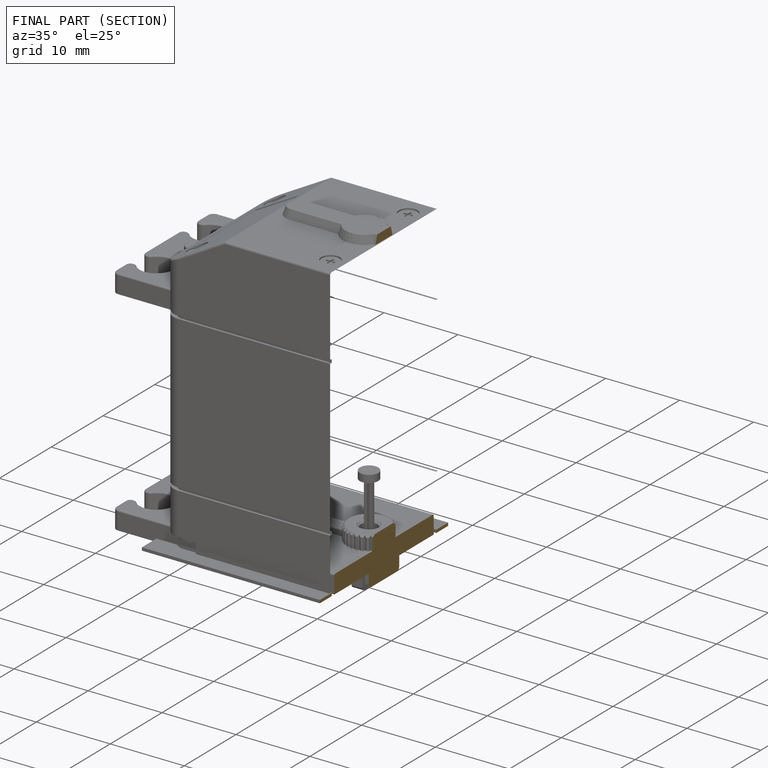
[diagram: finished part — half-section view (interior)]
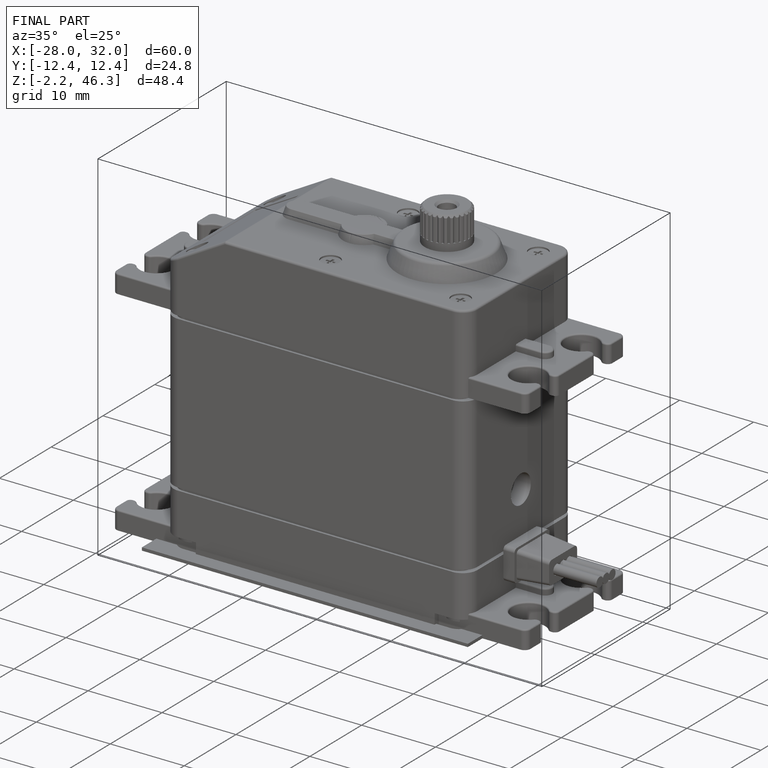
[diagram: finished part — iso view with bounding-box wireframe]
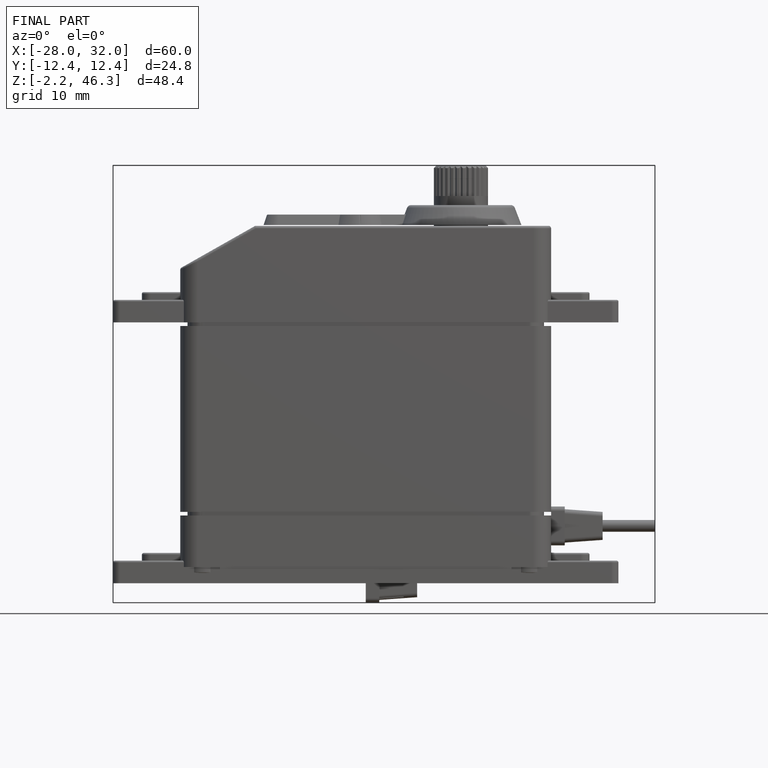
[diagram: finished part — front view with bounding-box wireframe]
